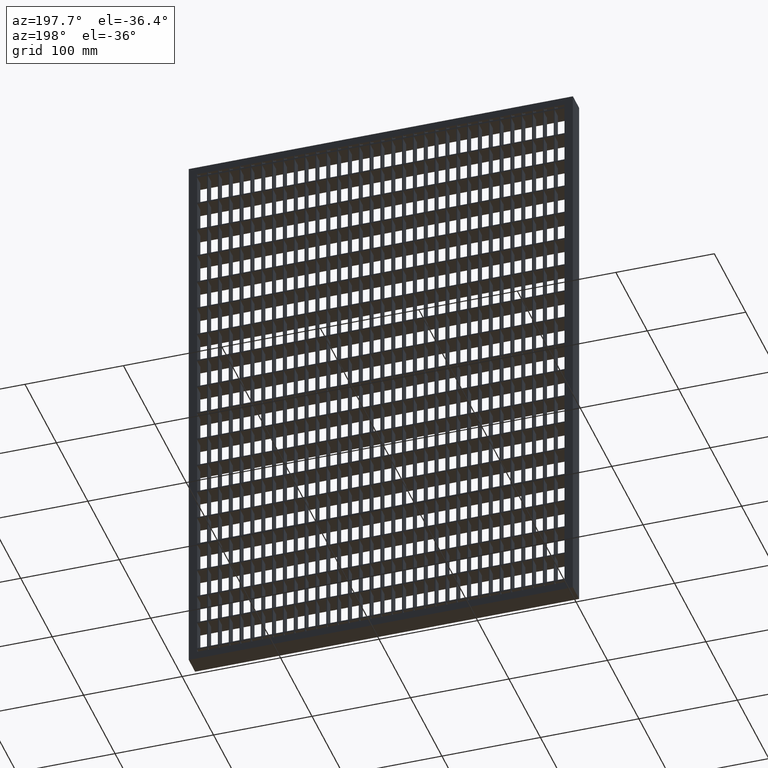
[diagram: clean part render]
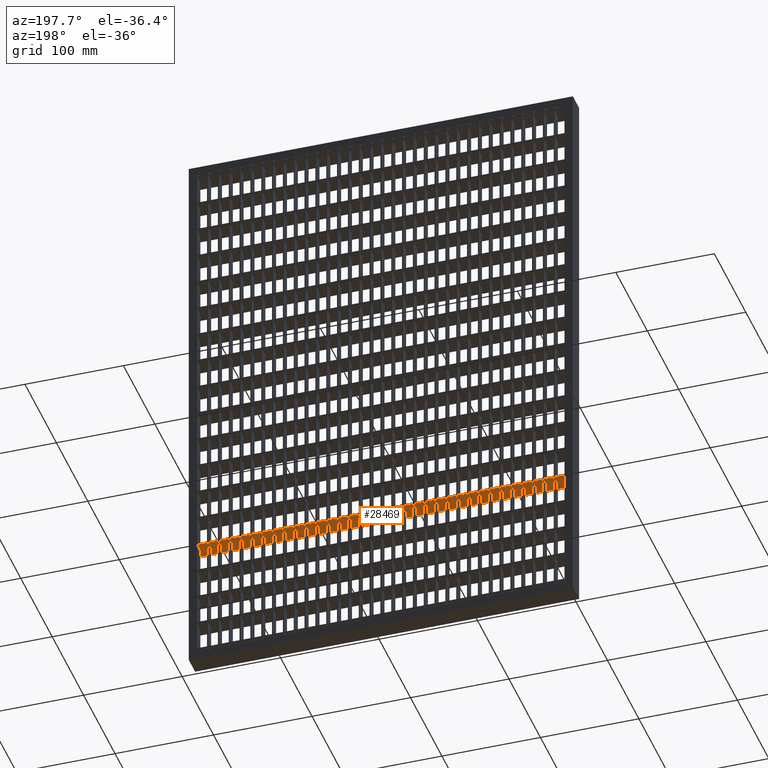
[diagram: same view with one face highlighted and labeled with its STEP entity id]
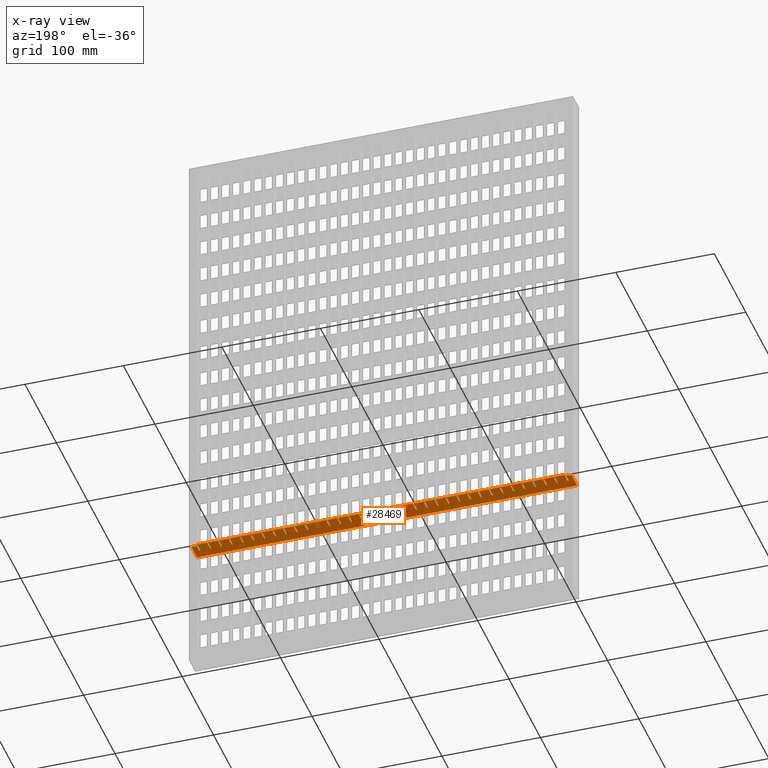
[diagram: x-ray of the same camera — body ghosted, the highlighted face saturated]
A machine part, auxiliary view. The second image highlights one B-rep face of the part: STEP entity #28469.
The next image is the same camera in x-ray: the body ghosted, the highlighted face saturated — about 0% of this face is hidden behind the body in this view.
In plain terms, the highlighted planar face has unit normal (0, 0, 1).
Its self-contained STEP definition (entity closure, byte-faithful):
#144 = EDGE_CURVE ( 'NONE', #3323, #60598, #19922, .T. ) ;
#207 = LINE ( 'NONE', #16979, #74221 ) ;
#248 = EDGE_CURVE ( 'NONE', #86354, #44160, #11823, .T. ) ;
#345 = ORIENTED_EDGE ( 'NONE', *, *, #84418, .T. ) ;
#395 = LINE ( 'NONE', #75064, #52413 ) ;
#396 = EDGE_CURVE ( 'NONE', #35924, #92250, #77726, .T. ) ;
#686 = VERTEX_POINT ( 'NONE', #36365 ) ;
#836 = ORIENTED_EDGE ( 'NONE', *, *, #70876, .T. ) ;
#864 = ORIENTED_EDGE ( 'NONE', *, *, #39873, .F. ) ;
#923 = LINE ( 'NONE', #89124, #77263 ) ;
#963 = CARTESIAN_POINT ( 'NONE',  ( 216.5000000000000600, 0.0000000000000000000, -453.2499999999996600 ) ) ;
#1115 = EDGE_CURVE ( 'NONE', #54842, #55804, #66169, .T. ) ;
#1119 = EDGE_CURVE ( 'NONE', #60914, #33950, #63845, .T. ) ;
#1159 = DIRECTION ( 'NONE',  ( -1.000000000000000000, -3.061616997868383100E-016, 0.0000000000000000000 ) ) ;
#1240 = EDGE_CURVE ( 'NONE', #20592, #46611, #27900, .T. ) ;
#1309 = ORIENTED_EDGE ( 'NONE', *, *, #11625, .F. ) ;
#1355 = DIRECTION ( 'NONE',  ( -1.000000000000000000, -3.061616997868383100E-016, 0.0000000000000000000 ) ) ;
#1396 = VERTEX_POINT ( 'NONE', #91280 ) ;
#1465 = ORIENTED_EDGE ( 'NONE', *, *, #7588, .F. ) ;
#1547 = LINE ( 'NONE', #40472, #66314 ) ;
#1558 = DIRECTION ( 'NONE',  ( 1.000000000000000000, 3.061616997868381200E-016, -0.0000000000000000000 ) ) ;
#1706 = ORIENTED_EDGE ( 'NONE', *, *, #77143, .T. ) ;
#1789 = LINE ( 'NONE', #53485, #66573 ) ;
#1822 = VECTOR ( 'NONE', #1159, 1000.000000000000000 ) ;
#1858 = VERTEX_POINT ( 'NONE', #28765 ) ;
#1903 = VECTOR ( 'NONE', #46127, 1000.000000000000000 ) ;
#1933 = LINE ( 'NONE', #64150, #15841 ) ;
#1991 = VECTOR ( 'NONE', #79908, 1000.000000000000000 ) ;
#2090 = LINE ( 'NONE', #62102, #21752 ) ;
#2132 = LINE ( 'NONE', #66692, #17141 ) ;
#2231 = DIRECTION ( 'NONE',  ( -0.0000000000000000000, 1.000000000000000000, 0.0000000000000000000 ) ) ;
#2252 = CARTESIAN_POINT ( 'NONE',  ( 408.0561711201315200, 10.00000000000012100, -453.2499999999996600 ) ) ;
#2326 = CARTESIAN_POINT ( 'NONE',  ( 8.500000000000007100, 0.0000000000000000000, -453.2499999999996600 ) ) ;
#2367 = EDGE_CURVE ( 'NONE', #29081, #67061, #70399, .T. ) ;
#2434 = CARTESIAN_POINT ( 'NONE',  ( 327.5000000000000000, 2.111809090760399300E-015, -453.2499999999996600 ) ) ;
#2467 = CARTESIAN_POINT ( 'NONE',  ( 272.5000000000000600, 10.00000000000008000, -453.2499999999996600 ) ) ;
#2624 = EDGE_CURVE ( 'NONE', #32377, #70332, #91221, .T. ) ;
#2689 = CARTESIAN_POINT ( 'NONE',  ( 184.5000000000000000, 10.00000000000000200, -453.2499999999996600 ) ) ;
#2697 = ORIENTED_EDGE ( 'NONE', *, *, #95166, .F. ) ;
#2743 = VERTEX_POINT ( 'NONE', #4106 ) ;
#2877 = LINE ( 'NONE', #95650, #91989 ) ;
#2918 = CARTESIAN_POINT ( 'NONE',  ( 19.50000000000001800, -9.999999999999879200, -453.2499999999996600 ) ) ;
#3078 = LINE ( 'NONE', #71842, #93368 ) ;
#3252 = LINE ( 'NONE', #52278, #47192 ) ;
#3323 = VERTEX_POINT ( 'NONE', #2434 ) ;
#3387 = ORIENTED_EDGE ( 'NONE', *, *, #88309, .F. ) ;
#3470 = EDGE_CURVE ( 'NONE', #75113, #46178, #78273, .T. ) ;
#3521 = CARTESIAN_POINT ( 'NONE',  ( 304.5000000000000000, 10.00000000000000200, -453.2499999999996600 ) ) ;
#3543 = PLANE ( 'NONE',  #50430 ) ;
#3550 = CARTESIAN_POINT ( 'NONE',  ( 227.5000000000000000, 0.0000000000000000000, -453.2499999999996600 ) ) ;
#3581 = CARTESIAN_POINT ( 'NONE',  ( 408.0561711201315800, 9.020562075079396900E-014, -453.2499999999996600 ) ) ;
#3617 = LINE ( 'NONE', #32721, #69582 ) ;
#3658 = CARTESIAN_POINT ( 'NONE',  ( 250.5000000000000600, 1.400131310671621700E-015, -453.2499999999996600 ) ) ;
#3725 = DIRECTION ( 'NONE',  ( -1.000000000000000000, 3.061616997868381200E-016, 0.0000000000000000000 ) ) ;
#3754 = CARTESIAN_POINT ( 'NONE',  ( 74.50000000000001400, 10.00000000000000200, -453.2499999999996600 ) ) ;
#3899 = DIRECTION ( 'NONE',  ( -1.000000000000000000, 3.061616997868381200E-016, 0.0000000000000000000 ) ) ;
#4025 = VERTEX_POINT ( 'NONE', #51279 ) ;
#4105 = DIRECTION ( 'NONE',  ( 0.0000000000000000000, -1.000000000000000000, 0.0000000000000000000 ) ) ;
#4106 = CARTESIAN_POINT ( 'NONE',  ( 2.000000000000003600, 8.000000000000001800, -453.2499999999996600 ) ) ;
#4117 = LINE ( 'NONE', #58048, #30735 ) ;
#4127 = ORIENTED_EDGE ( 'NONE', *, *, #13095, .T. ) ;
#4132 = DIRECTION ( 'NONE',  ( -0.0000000000000000000, 1.000000000000000000, 0.0000000000000000000 ) ) ;
#4165 = EDGE_CURVE ( 'NONE', #36715, #54830, #36460, .T. ) ;
#4538 = ORIENTED_EDGE ( 'NONE', *, *, #53985, .F. ) ;
#4927 = DIRECTION ( 'NONE',  ( -1.000000000000000000, -3.061616997868383100E-016, 0.0000000000000000000 ) ) ;
#5036 = CARTESIAN_POINT ( 'NONE',  ( 227.5000000000000000, -9.999999999999879200, -453.2499999999996600 ) ) ;
#5044 = VERTEX_POINT ( 'NONE', #79582 ) ;
#5077 = VECTOR ( 'NONE', #62718, 1000.000000000000000 ) ;
#5219 = EDGE_CURVE ( 'NONE', #29179, #28233, #63622, .T. ) ;
#5225 = VERTEX_POINT ( 'NONE', #963 ) ;
#5351 = DIRECTION ( 'NONE',  ( -1.000000000000000000, -3.061616997868383100E-016, 0.0000000000000000000 ) ) ;
#5436 = DIRECTION ( 'NONE',  ( -0.0000000000000000000, 1.000000000000000000, 0.0000000000000000000 ) ) ;
#5469 = ORIENTED_EDGE ( 'NONE', *, *, #80290, .F. ) ;
#5567 = CARTESIAN_POINT ( 'NONE',  ( 40.49999999999997900, 10.00000000000000900, -453.2499999999996600 ) ) ;
#5585 = DIRECTION ( 'NONE',  ( -0.0000000000000000000, 1.000000000000000000, 0.0000000000000000000 ) ) ;
#5596 = VECTOR ( 'NONE', #86441, 1000.000000000000000 ) ;
#5656 = CARTESIAN_POINT ( 'NONE',  ( 73.50000000000001400, -9.999999999999879200, -453.2499999999996600 ) ) ;
#5823 = CARTESIAN_POINT ( 'NONE',  ( 283.5000000000001100, 10.00000000000008300, -453.2499999999996600 ) ) ;
#5884 = DIRECTION ( 'NONE',  ( 0.0000000000000000000, -1.000000000000000000, 0.0000000000000000000 ) ) ;
#5947 = CARTESIAN_POINT ( 'NONE',  ( 95.49999999999997200, 10.00000000000002700, -453.2499999999996600 ) ) ;
#6090 = LINE ( 'NONE', #55140, #20020 ) ;
#6141 = VECTOR ( 'NONE', #33005, 1000.000000000000000 ) ;
#6163 = ORIENTED_EDGE ( 'NONE', *, *, #35197, .F. ) ;
#6188 = CARTESIAN_POINT ( 'NONE',  ( 408.0561711201315800, -4.683753385137379200E-014, -453.2499999999996600 ) ) ;
#6396 = DIRECTION ( 'NONE',  ( -1.000000000000000000, -3.061616997868383100E-016, 0.0000000000000000000 ) ) ;
#6442 = EDGE_CURVE ( 'NONE', #13172, #51925, #40094, .T. ) ;
#6783 = CARTESIAN_POINT ( 'NONE',  ( 95.50000000000002800, -9.999999999999879200, -453.2499999999996600 ) ) ;
#7127 = VERTEX_POINT ( 'NONE', #34643 ) ;
#7205 = VERTEX_POINT ( 'NONE', #79963 ) ;
#7260 = DIRECTION ( 'NONE',  ( -1.000000000000000000, -3.061616997868383100E-016, 0.0000000000000000000 ) ) ;
#7417 = VECTOR ( 'NONE', #73694, 1000.000000000000000 ) ;
#7448 = DIRECTION ( 'NONE',  ( -1.000000000000000000, -3.061616997868383100E-016, 0.0000000000000000000 ) ) ;
#7588 = EDGE_CURVE ( 'NONE', #4025, #16350, #30707, .T. ) ;
#7654 = ORIENTED_EDGE ( 'NONE', *, *, #40890, .T. ) ;
#7666 = DIRECTION ( 'NONE',  ( -0.0000000000000000000, 1.000000000000000000, 0.0000000000000000000 ) ) ;
#8175 = ORIENTED_EDGE ( 'NONE', *, *, #3470, .F. ) ;
#8466 = DIRECTION ( 'NONE',  ( -0.0000000000000000000, 1.000000000000000000, 0.0000000000000000000 ) ) ;
#8508 = CARTESIAN_POINT ( 'NONE',  ( 408.0561711201315200, 10.00000000000012100, -453.2499999999996600 ) ) ;
#8574 = ORIENTED_EDGE ( 'NONE', *, *, #68612, .T. ) ;
#8682 = LINE ( 'NONE', #87436, #30676 ) ;
#8764 = DIRECTION ( 'NONE',  ( 0.0000000000000000000, -1.000000000000000000, 0.0000000000000000000 ) ) ;
#8803 = ORIENTED_EDGE ( 'NONE', *, *, #42038, .F. ) ;
#8847 = CARTESIAN_POINT ( 'NONE',  ( 293.5000000000000600, 0.0000000000000000000, -453.2499999999996600 ) ) ;
#8850 = ORIENTED_EDGE ( 'NONE', *, *, #42411, .T. ) ;
#8951 = ORIENTED_EDGE ( 'NONE', *, *, #6442, .F. ) ;
#8992 = EDGE_CURVE ( 'NONE', #69404, #76708, #74364, .T. ) ;
#9013 = VECTOR ( 'NONE', #72881, 1000.000000000000000 ) ;
#9055 = CARTESIAN_POINT ( 'NONE',  ( 41.50000000000000700, 1.006284330175756500E-015, -453.2499999999996600 ) ) ;
#9100 = VECTOR ( 'NONE', #15430, 1000.000000000000000 ) ;
#9165 = LINE ( 'NONE', #64018, #38100 ) ;
#9346 = DIRECTION ( 'NONE',  ( 0.0000000000000000000, -1.000000000000000000, 0.0000000000000000000 ) ) ;
#9560 = LINE ( 'NONE', #42594, #15337 ) ;
#9789 = CARTESIAN_POINT ( 'NONE',  ( 162.5000000000000000, 10.00000000000000200, -453.2499999999996600 ) ) ;
#9799 = ORIENTED_EDGE ( 'NONE', *, *, #63276, .F. ) ;
#9865 = CARTESIAN_POINT ( 'NONE',  ( 408.0561711201315800, -1.908195823574487800E-014, -453.2499999999996600 ) ) ;
#9932 = LINE ( 'NONE', #66587, #66688 ) ;
#9939 = ORIENTED_EDGE ( 'NONE', *, *, #13104, .F. ) ;
#10087 = DIRECTION ( 'NONE',  ( 0.0000000000000000000, -1.000000000000000000, 0.0000000000000000000 ) ) ;
#10166 = VECTOR ( 'NONE', #56675, 1000.000000000000000 ) ;
#10180 = VECTOR ( 'NONE', #79009, 1000.000000000000000 ) ;
#10186 = VERTEX_POINT ( 'NONE', #93151 ) ;
#10257 = VERTEX_POINT ( 'NONE', #50110 ) ;
#10264 = DIRECTION ( 'NONE',  ( -0.0000000000000000000, 1.000000000000000000, 0.0000000000000000000 ) ) ;
#10463 = ORIENTED_EDGE ( 'NONE', *, *, #80101, .T. ) ;
#10479 = CARTESIAN_POINT ( 'NONE',  ( 294.5000000000000000, 1.806804327865204400E-015, -453.2499999999996600 ) ) ;
#10480 = VERTEX_POINT ( 'NONE', #75586 ) ;
#10542 = DIRECTION ( 'NONE',  ( -1.000000000000000000, -3.061616997868383100E-016, 0.0000000000000000000 ) ) ;
#10711 = CARTESIAN_POINT ( 'NONE',  ( 73.50000000000001400, 7.001226303889181300E-016, -453.2499999999996600 ) ) ;
#10903 = CARTESIAN_POINT ( 'NONE',  ( 183.5000000000000000, 7.001226303889181300E-016, -453.2499999999996600 ) ) ;
#11127 = VERTEX_POINT ( 'NONE', #36340 ) ;
#11247 = LINE ( 'NONE', #6783, #1991 ) ;
#11263 = CARTESIAN_POINT ( 'NONE',  ( 408.0561711201315800, 1.144917494144692700E-013, -453.2499999999996600 ) ) ;
#11403 = EDGE_CURVE ( 'NONE', #60914, #10257, #3617, .T. ) ;
#11518 = CARTESIAN_POINT ( 'NONE',  ( 408.0561711201315200, 10.00000000000012100, -453.2499999999996600 ) ) ;
#11625 = EDGE_CURVE ( 'NONE', #34075, #3323, #44066, .T. ) ;
#11729 = CARTESIAN_POINT ( 'NONE',  ( 293.5000000000000600, 10.00000000000000200, -453.2499999999996600 ) ) ;
#11762 = VECTOR ( 'NONE', #49851, 1000.000000000000000 ) ;
#11811 = ORIENTED_EDGE ( 'NONE', *, *, #87269, .T. ) ;
#11823 = LINE ( 'NONE', #89869, #60458 ) ;
#11877 = ORIENTED_EDGE ( 'NONE', *, *, #69801, .F. ) ;
#12046 = DIRECTION ( 'NONE',  ( 0.0000000000000000000, -1.000000000000000000, 0.0000000000000000000 ) ) ;
#12156 = VECTOR ( 'NONE', #29149, 1000.000000000000000 ) ;
#12271 = EDGE_CURVE ( 'NONE', #64989, #84434, #9165, .T. ) ;
#12299 = EDGE_CURVE ( 'NONE', #62370, #59555, #28815, .T. ) ;
#12391 = CARTESIAN_POINT ( 'NONE',  ( 388.0000000000000000, -9.999999999999879200, -453.2499999999996600 ) ) ;
#12695 = ORIENTED_EDGE ( 'NONE', *, *, #42149, .F. ) ;
#12784 = CARTESIAN_POINT ( 'NONE',  ( 52.50000000000002100, 1.006284330175756500E-015, -453.2499999999996600 ) ) ;
#12830 = DIRECTION ( 'NONE',  ( -0.0000000000000000000, 1.000000000000000000, 0.0000000000000000000 ) ) ;
#12859 = CARTESIAN_POINT ( 'NONE',  ( 107.5000000000000400, -9.999999999999879200, -453.2499999999996600 ) ) ;
#13005 = CARTESIAN_POINT ( 'NONE',  ( 129.5000000000000000, 1.006284330175756500E-015, -453.2499999999996600 ) ) ;
#13020 = DIRECTION ( 'NONE',  ( 0.0000000000000000000, -1.000000000000000000, 0.0000000000000000000 ) ) ;
#13095 = EDGE_CURVE ( 'NONE', #48655, #25972, #74945, .T. ) ;
#13104 = EDGE_CURVE ( 'NONE', #67061, #88639, #21791, .T. ) ;
#13116 = LINE ( 'NONE', #49816, #71023 ) ;
#13124 = EDGE_CURVE ( 'NONE', #39058, #51925, #923, .T. ) ;
#13172 = VERTEX_POINT ( 'NONE', #17267 ) ;
#13410 = DIRECTION ( 'NONE',  ( -0.0000000000000000000, 1.000000000000000000, 0.0000000000000000000 ) ) ;
#13546 = EDGE_CURVE ( 'NONE', #46178, #20592, #1933, .T. ) ;
#13762 = LINE ( 'NONE', #52570, #54201 ) ;
#13913 = VERTEX_POINT ( 'NONE', #45900 ) ;
#13938 = CARTESIAN_POINT ( 'NONE',  ( 194.9999999999999700, 8.000000000000001800, -453.2499999999996600 ) ) ;
#13955 = CARTESIAN_POINT ( 'NONE',  ( 128.5000000000000000, 10.00000000000003700, -453.2499999999996600 ) ) ;
#14106 = EDGE_CURVE ( 'NONE', #56371, #86022, #59643, .T. ) ;
#14290 = CARTESIAN_POINT ( 'NONE',  ( 315.5000000000001100, 0.0000000000000000000, -453.2499999999996600 ) ) ;
#14300 = LINE ( 'NONE', #22314, #17744 ) ;
#14431 = CARTESIAN_POINT ( 'NONE',  ( 337.5000000000000000, -9.999999999999879200, -453.2499999999996600 ) ) ;
#14681 = LINE ( 'NONE', #20130, #91088 ) ;
#14686 = CARTESIAN_POINT ( 'NONE',  ( 206.5000000000000600, 10.00000000000005900, -453.2499999999996600 ) ) ;
#14887 = VECTOR ( 'NONE', #31025, 1000.000000000000000 ) ;
#14918 = CARTESIAN_POINT ( 'NONE',  ( 349.5000000000000600, 5.804221233803774300E-016, -453.2499999999996600 ) ) ;
#14968 = VECTOR ( 'NONE', #81479, 1000.000000000000000 ) ;
#15066 = LINE ( 'NONE', #24230, #28882 ) ;
#15171 = LINE ( 'NONE', #66135, #71890 ) ;
#15271 = LINE ( 'NONE', #51887, #26766 ) ;
#15337 = VECTOR ( 'NONE', #72031, 1000.000000000000000 ) ;
#15430 = DIRECTION ( 'NONE',  ( -1.000000000000000000, 3.061616997868381200E-016, 0.0000000000000000000 ) ) ;
#15549 = ORIENTED_EDGE ( 'NONE', *, *, #89987, .F. ) ;
#15816 = LINE ( 'NONE', #64687, #80606 ) ;
#15841 = VECTOR ( 'NONE', #13020, 1000.000000000000000 ) ;
#15975 = VECTOR ( 'NONE', #40163, 1000.000000000000000 ) ;
#16079 = EDGE_CURVE ( 'NONE', #30538, #7205, #18846, .T. ) ;
#16123 = CARTESIAN_POINT ( 'NONE',  ( 261.5000000000000600, 10.00000000000007600, -453.2499999999996600 ) ) ;
#16143 = EDGE_CURVE ( 'NONE', #28233, #16584, #77859, .T. ) ;
#16350 = VERTEX_POINT ( 'NONE', #72429 ) ;
#16371 = CARTESIAN_POINT ( 'NONE',  ( 41.50000000000000700, 10.00000000000000200, -453.2499999999996600 ) ) ;
#16428 = DIRECTION ( 'NONE',  ( -1.000000000000000000, 3.061616997868381200E-016, 0.0000000000000000000 ) ) ;
#16457 = ORIENTED_EDGE ( 'NONE', *, *, #81700, .F. ) ;
#16500 = CARTESIAN_POINT ( 'NONE',  ( 150.5000000000000300, 10.00000000000004400, -453.2499999999996600 ) ) ;
#16584 = VERTEX_POINT ( 'NONE', #81473 ) ;
#16655 = EDGE_CURVE ( 'NONE', #95511, #1858, #19867, .T. ) ;
#16723 = VECTOR ( 'NONE', #18718, 1000.000000000000000 ) ;
#16771 = ORIENTED_EDGE ( 'NONE', *, *, #74896, .F. ) ;
#16869 = LINE ( 'NONE', #89529, #90957 ) ;
#16908 = ORIENTED_EDGE ( 'NONE', *, *, #2367, .F. ) ;
#16974 = ORIENTED_EDGE ( 'NONE', *, *, #16079, .T. ) ;
#16979 = CARTESIAN_POINT ( 'NONE',  ( 29.50000000000002500, -9.999999999999879200, -453.2499999999996600 ) ) ;
#17141 = VECTOR ( 'NONE', #1355, 1000.000000000000000 ) ;
#17249 = EDGE_CURVE ( 'NONE', #88537, #57633, #19735, .T. ) ;
#17267 = CARTESIAN_POINT ( 'NONE',  ( 183.5000000000000000, 10.00000000000005200, -453.2499999999996600 ) ) ;
#17408 = ORIENTED_EDGE ( 'NONE', *, *, #16143, .F. ) ;
#17433 = CARTESIAN_POINT ( 'NONE',  ( 228.5000000000000300, 1.196794802074833300E-015, -453.2499999999996600 ) ) ;
#17494 = CARTESIAN_POINT ( 'NONE',  ( 305.5000000000000000, -9.999999999999879200, -453.2499999999996600 ) ) ;
#17537 = DIRECTION ( 'NONE',  ( -1.000000000000000000, -3.061616997868383100E-016, 0.0000000000000000000 ) ) ;
#17631 = VECTOR ( 'NONE', #3899, 1000.000000000000000 ) ;
#17648 = EDGE_CURVE ( 'NONE', #23531, #18692, #54322, .T. ) ;
#17685 = VECTOR ( 'NONE', #70610, 1000.000000000000000 ) ;
#17693 = LINE ( 'NONE', #46249, #57027 ) ;
#17744 = VECTOR ( 'NONE', #66317, 1000.000000000000000 ) ;
#17861 = VERTEX_POINT ( 'NONE', #63811 ) ;
#17866 = DIRECTION ( 'NONE',  ( 0.0000000000000000000, -1.000000000000000000, 0.0000000000000000000 ) ) ;
#17978 = VERTEX_POINT ( 'NONE', #5567 ) ;
#17984 = CARTESIAN_POINT ( 'NONE',  ( 381.5000000000000600, 1.006284330175756500E-015, -453.2499999999996600 ) ) ;
#18011 = LINE ( 'NONE', #20980, #92105 ) ;
#18262 = LINE ( 'NONE', #71561, #10166 ) ;
#18302 = CARTESIAN_POINT ( 'NONE',  ( 282.5000000000000600, -9.999999999999879200, -453.2499999999996600 ) ) ;
#18400 = DIRECTION ( 'NONE',  ( 0.0000000000000000000, -1.000000000000000000, 0.0000000000000000000 ) ) ;
#18494 = LINE ( 'NONE', #27648, #35806 ) ;
#18594 = ORIENTED_EDGE ( 'NONE', *, *, #39880, .F. ) ;
#18610 = DIRECTION ( 'NONE',  ( -1.000000000000000000, 3.061616997868381200E-016, 0.0000000000000000000 ) ) ;
#18692 = VERTEX_POINT ( 'NONE', #73864 ) ;
#18718 = DIRECTION ( 'NONE',  ( -0.0000000000000000000, 1.000000000000000000, 0.0000000000000000000 ) ) ;
#18796 = CARTESIAN_POINT ( 'NONE',  ( 408.0561711201315800, -2.949029909160572100E-014, -453.2499999999996600 ) ) ;
#18846 = LINE ( 'NONE', #3581, #85975 ) ;
#18880 = LINE ( 'NONE', #41955, #69797 ) ;
#18921 = VECTOR ( 'NONE', #50731, 1000.000000000000000 ) ;
#19105 = DIRECTION ( 'NONE',  ( -0.0000000000000000000, 1.000000000000000000, 0.0000000000000000000 ) ) ;
#19358 = VECTOR ( 'NONE', #38067, 1000.000000000000000 ) ;
#19501 = LINE ( 'NONE', #71531, #10180 ) ;
#19519 = CARTESIAN_POINT ( 'NONE',  ( 84.50000000000001400, 7.001226303889181300E-016, -453.2499999999996600 ) ) ;
#19537 = CARTESIAN_POINT ( 'NONE',  ( 408.0561711201315200, 10.00000000000012100, -453.2499999999996600 ) ) ;
#19605 = LINE ( 'NONE', #27863, #21923 ) ;
#19645 = VECTOR ( 'NONE', #88692, 1000.000000000000000 ) ;
#19735 = LINE ( 'NONE', #17494, #84526 ) ;
#19781 = ORIENTED_EDGE ( 'NONE', *, *, #32764, .F. ) ;
#19782 = EDGE_CURVE ( 'NONE', #7205, #42578, #56106, .T. ) ;
#19867 = LINE ( 'NONE', #53288, #57976 ) ;
#19871 = LINE ( 'NONE', #2252, #61519 ) ;
#19901 = CARTESIAN_POINT ( 'NONE',  ( 96.50000000000002800, -9.999999999999879200, -453.2499999999996600 ) ) ;
#19922 = LINE ( 'NONE', #75926, #48841 ) ;
#20020 = VECTOR ( 'NONE', #3725, 1000.000000000000000 ) ;
#20080 = DIRECTION ( 'NONE',  ( 1.000000000000000000, 3.061616997868381200E-016, -0.0000000000000000000 ) ) ;
#20130 = CARTESIAN_POINT ( 'NONE',  ( 161.5000000000000000, -9.999999999999879200, -453.2499999999996600 ) ) ;
#20528 = EDGE_CURVE ( 'NONE', #5044, #37291, #38536, .T. ) ;
#20592 = VERTEX_POINT ( 'NONE', #72114 ) ;
#20619 = VERTEX_POINT ( 'NONE', #42982 ) ;
#20628 = CARTESIAN_POINT ( 'NONE',  ( 19.50000000000001800, 1.006284330175756500E-015, -453.2499999999996600 ) ) ;
#20734 = CARTESIAN_POINT ( 'NONE',  ( 382.5000000000000600, 7.001226303889181300E-016, -453.2499999999996600 ) ) ;
#20737 = LINE ( 'NONE', #92147, #82068 ) ;
#20766 = CARTESIAN_POINT ( 'NONE',  ( 408.0561711201315800, -1.040834085586084300E-014, -453.2499999999996600 ) ) ;
#20802 = VECTOR ( 'NONE', #32957, 1000.000000000000000 ) ;
#20873 = ORIENTED_EDGE ( 'NONE', *, *, #74193, .F. ) ;
#20980 = CARTESIAN_POINT ( 'NONE',  ( 408.0561711201315200, 10.00000000000012100, -453.2499999999996600 ) ) ;
#21083 = EDGE_CURVE ( 'NONE', #1858, #54811, #58259, .T. ) ;
#21212 = DIRECTION ( 'NONE',  ( -0.0000000000000000000, 1.000000000000000000, 0.0000000000000000000 ) ) ;
#21222 = LINE ( 'NONE', #46953, #86014 ) ;
#21358 = CARTESIAN_POINT ( 'NONE',  ( 106.5000000000000100, 7.001226303889181300E-016, -453.2499999999996600 ) ) ;
#21424 = CARTESIAN_POINT ( 'NONE',  ( 2.000000000000003600, -10.00000000000000000, -453.2499999999996600 ) ) ;
#21752 = VECTOR ( 'NONE', #33570, 1000.000000000000000 ) ;
#21791 = LINE ( 'NONE', #67110, #49527 ) ;
#21812 = CARTESIAN_POINT ( 'NONE',  ( 172.5000000000000300, 10.00000000000004800, -453.2499999999996600 ) ) ;
#21923 = VECTOR ( 'NONE', #4927, 1000.000000000000000 ) ;
#22151 = LINE ( 'NONE', #41183, #32490 ) ;
#22185 = VERTEX_POINT ( 'NONE', #78849 ) ;
#22314 = CARTESIAN_POINT ( 'NONE',  ( 217.5000000000000600, -9.999999999999879200, -453.2499999999996600 ) ) ;
#22330 = ORIENTED_EDGE ( 'NONE', *, *, #54750, .T. ) ;
#22452 = LINE ( 'NONE', #79362, #59461 ) ;
#22478 = DIRECTION ( 'NONE',  ( -1.000000000000000000, 3.061616997868381200E-016, 0.0000000000000000000 ) ) ;
#22549 = VECTOR ( 'NONE', #7666, 1000.000000000000000 ) ;
#22573 = LINE ( 'NONE', #46606, #39893 ) ;
#22742 = DIRECTION ( 'NONE',  ( -1.000000000000000000, 3.061616997868381200E-016, 0.0000000000000000000 ) ) ;
#22949 = VERTEX_POINT ( 'NONE', #58302 ) ;
#22981 = ORIENTED_EDGE ( 'NONE', *, *, #78600, .F. ) ;
#23045 = EDGE_CURVE ( 'NONE', #43742, #40910, #75894, .T. ) ;
#23063 = DIRECTION ( 'NONE',  ( 1.000000000000000000, 3.061616997868381200E-016, -0.0000000000000000000 ) ) ;
#23171 = DIRECTION ( 'NONE',  ( -0.0000000000000000000, 1.000000000000000000, 0.0000000000000000000 ) ) ;
#23498 = CARTESIAN_POINT ( 'NONE',  ( 408.0561711201315800, -3.989863994746656300E-014, -453.2499999999996600 ) ) ;
#23531 = VERTEX_POINT ( 'NONE', #84420 ) ;
#23691 = ORIENTED_EDGE ( 'NONE', *, *, #14106, .F. ) ;
#23855 = EDGE_CURVE ( 'NONE', #54811, #29179, #18011, .T. ) ;
#23929 = DIRECTION ( 'NONE',  ( 1.000000000000000000, 3.061616997868381200E-016, -0.0000000000000000000 ) ) ;
#23953 = DIRECTION ( 'NONE',  ( -1.000000000000000000, -3.061616997868383100E-016, 0.0000000000000000000 ) ) ;
#24057 = VECTOR ( 'NONE', #55793, 1000.000000000000000 ) ;
#24064 = DIRECTION ( 'NONE',  ( -1.000000000000000000, -3.061616997868383100E-016, 0.0000000000000000000 ) ) ;
#24113 = VERTEX_POINT ( 'NONE', #16371 ) ;
#24123 = CARTESIAN_POINT ( 'NONE',  ( 408.0561711201315800, 6.765421556309547700E-014, -453.2499999999996600 ) ) ;
#24138 = ORIENTED_EDGE ( 'NONE', *, *, #31767, .T. ) ;
#24209 = CARTESIAN_POINT ( 'NONE',  ( 51.49999999999999300, 10.00000000000001200, -453.2499999999996600 ) ) ;
#24210 = LINE ( 'NONE', #20766, #76186 ) ;
#24230 = CARTESIAN_POINT ( 'NONE',  ( 40.49999999999997900, -9.999999999999879200, -453.2499999999996600 ) ) ;
#24731 = LINE ( 'NONE', #11263, #5077 ) ;
#24843 = EDGE_CURVE ( 'NONE', #70807, #57696, #58197, .T. ) ;
#24884 = DIRECTION ( 'NONE',  ( -0.0000000000000000000, 1.000000000000000000, 0.0000000000000000000 ) ) ;
#25062 = VERTEX_POINT ( 'NONE', #64423 ) ;
#25307 = CARTESIAN_POINT ( 'NONE',  ( 283.5000000000001100, 1.705136073566798000E-015, -453.2499999999996600 ) ) ;
#25558 = CARTESIAN_POINT ( 'NONE',  ( 408.0561711201315800, 1.110223024625156500E-013, -453.2499999999996600 ) ) ;
#25654 = CARTESIAN_POINT ( 'NONE',  ( 408.0561711201315800, 1.040834085586084300E-013, -453.2499999999996600 ) ) ;
#25709 = VERTEX_POINT ( 'NONE', #73835 ) ;
#25952 = CARTESIAN_POINT ( 'NONE',  ( 315.5000000000001100, 10.00000000000000200, -453.2499999999996600 ) ) ;
#25972 = VERTEX_POINT ( 'NONE', #83195 ) ;
#26097 = ORIENTED_EDGE ( 'NONE', *, *, #8992, .T. ) ;
#26313 = ORIENTED_EDGE ( 'NONE', *, *, #94749, .F. ) ;
#26475 = LINE ( 'NONE', #33720, #84421 ) ;
#26530 = DIRECTION ( 'NONE',  ( 1.000000000000000000, 3.061616997868381200E-016, -0.0000000000000000000 ) ) ;
#26560 = LINE ( 'NONE', #59166, #72847 ) ;
#26573 = CARTESIAN_POINT ( 'NONE',  ( 206.5000000000000900, 9.934582934780326000E-016, -453.2499999999996600 ) ) ;
#26685 = EDGE_CURVE ( 'NONE', #59555, #58074, #38085, .T. ) ;
#26766 = VECTOR ( 'NONE', #45393, 1000.000000000000000 ) ;
#26818 = VERTEX_POINT ( 'NONE', #35517 ) ;
#26981 = VERTEX_POINT ( 'NONE', #53585 ) ;
#27244 = DIRECTION ( 'NONE',  ( 0.0000000000000000000, -1.000000000000000000, 0.0000000000000000000 ) ) ;
#27288 = ORIENTED_EDGE ( 'NONE', *, *, #17648, .F. ) ;
#27475 = VERTEX_POINT ( 'NONE', #59019 ) ;
#27494 = CARTESIAN_POINT ( 'NONE',  ( 128.5000000000000000, 7.001226303889181300E-016, -453.2499999999996600 ) ) ;
#27537 = VECTOR ( 'NONE', #65103, 1000.000000000000000 ) ;
#27587 = VERTEX_POINT ( 'NONE', #67115 ) ;
#27648 = CARTESIAN_POINT ( 'NONE',  ( 18.50000000000001800, -9.999999999999879200, -453.2499999999996600 ) ) ;
#27724 = CARTESIAN_POINT ( 'NONE',  ( 316.5000000000001100, 10.00000000000009400, -453.2499999999996600 ) ) ;
#27726 = EDGE_CURVE ( 'NONE', #53276, #64507, #1789, .T. ) ;
#27863 = CARTESIAN_POINT ( 'NONE',  ( 408.0561711201315200, 10.00000000000012100, -453.2499999999996600 ) ) ;
#27900 = LINE ( 'NONE', #74488, #41821 ) ;
#27950 = CARTESIAN_POINT ( 'NONE',  ( 96.50000000000001400, 1.006284330175756500E-015, -453.2499999999996600 ) ) ;
#28016 = ORIENTED_EDGE ( 'NONE', *, *, #56324, .T. ) ;
#28091 = CARTESIAN_POINT ( 'NONE',  ( 2.000000000000003600, 8.000000000000001800, -453.2499999999996600 ) ) ;
#28153 = VECTOR ( 'NONE', #19105, 1000.000000000000000 ) ;
#28233 = VERTEX_POINT ( 'NONE', #14918 ) ;
#28293 = EDGE_CURVE ( 'NONE', #93630, #49967, #39780, .T. ) ;
#28389 = CARTESIAN_POINT ( 'NONE',  ( 382.5000000000000600, -9.999999999999879200, -453.2499999999996600 ) ) ;
#28407 = LINE ( 'NONE', #76818, #44550 ) ;
#28469 = ADVANCED_FACE ( 'NONE', ( #71008 ), #3543, .F. ) ;
#28490 = DIRECTION ( 'NONE',  ( -1.000000000000000000, 3.061616997868381200E-016, 0.0000000000000000000 ) ) ;
#28604 = VECTOR ( 'NONE', #93677, 1000.000000000000000 ) ;
#28651 = ORIENTED_EDGE ( 'NONE', *, *, #34348, .T. ) ;
#28765 = CARTESIAN_POINT ( 'NONE',  ( 359.5000000000000600, 0.0000000000000000000, -453.2499999999996600 ) ) ;
#28767 = LINE ( 'NONE', #51916, #78456 ) ;
#28775 = ORIENTED_EDGE ( 'NONE', *, *, #76129, .T. ) ;
#28798 = CARTESIAN_POINT ( 'NONE',  ( 161.5000000000000000, 7.001226303889181300E-016, -453.2499999999996600 ) ) ;
#28815 = LINE ( 'NONE', #85373, #53136 ) ;
#28882 = VECTOR ( 'NONE', #9346, 1000.000000000000000 ) ;
#28987 = EDGE_LOOP ( 'NONE', ( #68307, #91130, #1706, #54388, #69373, #864, #87169, #26097, #69212, #61724, #28016, #54419, #71270, #70796, #7654, #41063, #28775, #46698, #46694, #85787, #836, #16771, #46397, #44873, #69257, #69042, #53219, #53353, #89827, #42006, #74635, #59999, #69525, #69628, #47291, #10463, #78517, #61144, #81274, #65869, #8850, #3387, #36842, #58081, #8574, #94989, #50409, #16974, #82182, #39203, #48507, #33979, #95269, #57876, #64123, #29567, #22330, #65234, #94138, #67990, #78006, #45081, #24138, #345, #29289, #23691, #28651, #58508, #54228, #8951, #74889, #64575, #68234, #62060, #4127, #11811, #88264, #84733, #26313, #76205, #53391, #15549, #18594, #6163, #66761, #85023, #85926, #9939, #16908, #56800, #64602, #47097, #1465, #80189, #71238, #16457, #57167, #27288, #51726, #55846, #61471, #8175, #37438, #8803, #44494, #20873, #33581, #33309, #73903, #4538, #2697, #12695, #60221, #36074, #95051, #45843, #35748, #66296, #88996, #93002, #84924, #72686, #22981, #82006, #1309, #90878, #85042, #72486, #5469, #50662, #45608, #17408, #56419, #41332, #83394, #82518, #84749, #48312, #82116, #11877, #9799, #87465, #19781, #41737 ) ) ;
#29042 = VERTEX_POINT ( 'NONE', #25952 ) ;
#29081 = VERTEX_POINT ( 'NONE', #40493 ) ;
#29110 = VECTOR ( 'NONE', #74694, 1000.000000000000000 ) ;
#29149 = DIRECTION ( 'NONE',  ( -1.000000000000000000, -3.061616997868383100E-016, 0.0000000000000000000 ) ) ;
#29179 = VERTEX_POINT ( 'NONE', #86778 ) ;
#29271 = CARTESIAN_POINT ( 'NONE',  ( 408.0561711201315800, -6.071532165918824800E-014, -453.2499999999996600 ) ) ;
#29289 = ORIENTED_EDGE ( 'NONE', *, *, #83840, .T. ) ;
#29379 = CARTESIAN_POINT ( 'NONE',  ( 2.000000000000001800, -10.00000000000000400, -453.2499999999996600 ) ) ;
#29400 = CARTESIAN_POINT ( 'NONE',  ( 84.49999999999995700, 10.00000000000002300, -453.2499999999996600 ) ) ;
#29567 = ORIENTED_EDGE ( 'NONE', *, *, #20528, .T. ) ;
#29677 = CARTESIAN_POINT ( 'NONE',  ( 173.5000000000000300, 1.006284330175756500E-015, -453.2499999999996600 ) ) ;
#29690 = CARTESIAN_POINT ( 'NONE',  ( 349.5000000000000600, -9.999999999999879200, -453.2499999999996600 ) ) ;
#29867 = DIRECTION ( 'NONE',  ( 0.0000000000000000000, -1.000000000000000000, 0.0000000000000000000 ) ) ;
#29896 = VECTOR ( 'NONE', #28490, 1000.000000000000000 ) ;
#29944 = VERTEX_POINT ( 'NONE', #94271 ) ;
#30243 = DIRECTION ( 'NONE',  ( -0.0000000000000000000, 1.000000000000000000, 0.0000000000000000000 ) ) ;
#30538 = VERTEX_POINT ( 'NONE', #62182 ) ;
#30652 = EDGE_CURVE ( 'NONE', #41215, #57696, #95911, .T. ) ;
#30660 = CARTESIAN_POINT ( 'NONE',  ( 30.50000000000002800, -9.999999999999879200, -453.2499999999996600 ) ) ;
#30676 = VECTOR ( 'NONE', #5585, 1000.000000000000000 ) ;
#30707 = LINE ( 'NONE', #62741, #56158 ) ;
#30735 = VECTOR ( 'NONE', #37929, 1000.000000000000000 ) ;
#30929 = CARTESIAN_POINT ( 'NONE',  ( 271.5000000000000600, 0.0000000000000000000, -453.2499999999996600 ) ) ;
#31025 = DIRECTION ( 'NONE',  ( -0.0000000000000000000, 1.000000000000000000, 0.0000000000000000000 ) ) ;
#31352 = DIRECTION ( 'NONE',  ( -0.0000000000000000000, 1.000000000000000000, 0.0000000000000000000 ) ) ;
#31767 = EDGE_CURVE ( 'NONE', #29944, #49042, #14681, .T. ) ;
#32130 = DIRECTION ( 'NONE',  ( -1.000000000000000000, -3.061616997868383100E-016, 0.0000000000000000000 ) ) ;
#32177 = CARTESIAN_POINT ( 'NONE',  ( 408.0561711201315200, 10.00000000000012100, -453.2499999999996600 ) ) ;
#32377 = VERTEX_POINT ( 'NONE', #52549 ) ;
#32421 = EDGE_CURVE ( 'NONE', #96002, #60193, #28767, .T. ) ;
#32490 = VECTOR ( 'NONE', #92947, 1000.000000000000000 ) ;
#32721 = CARTESIAN_POINT ( 'NONE',  ( 62.50000000000000000, -9.999999999999879200, -453.2499999999996600 ) ) ;
#32764 = EDGE_CURVE ( 'NONE', #93168, #96002, #26475, .T. ) ;
#32957 = DIRECTION ( 'NONE',  ( 1.000000000000000000, 3.061616997868381200E-016, -0.0000000000000000000 ) ) ;
#33005 = DIRECTION ( 'NONE',  ( -1.000000000000000000, -3.061616997868383100E-016, 0.0000000000000000000 ) ) ;
#33309 = ORIENTED_EDGE ( 'NONE', *, *, #92588, .F. ) ;
#33319 = CARTESIAN_POINT ( 'NONE',  ( 408.0561711201315200, 10.00000000000012100, -453.2499999999996600 ) ) ;
#33379 = DIRECTION ( 'NONE',  ( -0.0000000000000000000, 1.000000000000000000, 0.0000000000000000000 ) ) ;
#33398 = VECTOR ( 'NONE', #52593, 1000.000000000000000 ) ;
#33426 = CARTESIAN_POINT ( 'NONE',  ( 408.0561711201315800, 6.938893903907228400E-014, -453.2499999999996600 ) ) ;
#33452 = CARTESIAN_POINT ( 'NONE',  ( 162.5000000000000000, 1.006284330175756500E-015, -453.2499999999996600 ) ) ;
#33461 = EDGE_CURVE ( 'NONE', #71869, #26981, #11247, .T. ) ;
#33529 = DIRECTION ( 'NONE',  ( -1.000000000000000000, -3.061616997868383100E-016, 0.0000000000000000000 ) ) ;
#33537 = VECTOR ( 'NONE', #10542, 1000.000000000000000 ) ;
#33570 = DIRECTION ( 'NONE',  ( 0.0000000000000000000, -1.000000000000000000, 0.0000000000000000000 ) ) ;
#33581 = ORIENTED_EDGE ( 'NONE', *, *, #93164, .F. ) ;
#33707 = LINE ( 'NONE', #34008, #70766 ) ;
#33720 = CARTESIAN_POINT ( 'NONE',  ( 381.5000000000000600, -9.999999999999879200, -453.2499999999996600 ) ) ;
#33943 = VECTOR ( 'NONE', #79864, 1000.000000000000000 ) ;
#33950 = VERTEX_POINT ( 'NONE', #86937 ) ;
#33979 = ORIENTED_EDGE ( 'NONE', *, *, #48040, .T. ) ;
#34008 = CARTESIAN_POINT ( 'NONE',  ( 338.5000000000000000, -9.999999999999879200, -453.2499999999996600 ) ) ;
#34011 = VECTOR ( 'NONE', #80578, 1000.000000000000000 ) ;
#34075 = VERTEX_POINT ( 'NONE', #66203 ) ;
#34160 = DIRECTION ( 'NONE',  ( -0.0000000000000000000, 1.000000000000000000, 0.0000000000000000000 ) ) ;
#34199 = VECTOR ( 'NONE', #8764, 1000.000000000000000 ) ;
#34247 = DIRECTION ( 'NONE',  ( -1.000000000000000000, 3.061616997868381200E-016, 0.0000000000000000000 ) ) ;
#34331 = VECTOR ( 'NONE', #35088, 1000.000000000000000 ) ;
#34348 = EDGE_CURVE ( 'NONE', #56371, #26818, #68884, .T. ) ;
#34418 = DIRECTION ( 'NONE',  ( 0.0000000000000000000, -1.000000000000000000, 0.0000000000000000000 ) ) ;
#34643 = CARTESIAN_POINT ( 'NONE',  ( 19.50000000000001800, 10.00000000000000200, -453.2499999999996600 ) ) ;
#34750 = VERTEX_POINT ( 'NONE', #10903 ) ;
#34878 = CARTESIAN_POINT ( 'NONE',  ( 408.0561711201315800, 8.326672684688674100E-014, -453.2499999999996600 ) ) ;
#35018 = EDGE_CURVE ( 'NONE', #37249, #52339, #73381, .T. ) ;
#35088 = DIRECTION ( 'NONE',  ( -1.000000000000000000, -3.061616997868383100E-016, 0.0000000000000000000 ) ) ;
#35197 = EDGE_CURVE ( 'NONE', #22949, #5225, #43235, .T. ) ;
#35319 = LINE ( 'NONE', #88706, #12156 ) ;
#35410 = CARTESIAN_POINT ( 'NONE',  ( 63.50000000000000000, 10.00000000000000200, -453.2499999999996600 ) ) ;
#35517 = CARTESIAN_POINT ( 'NONE',  ( 172.5000000000000300, 7.001226303889181300E-016, -453.2499999999996600 ) ) ;
#35641 = LINE ( 'NONE', #19901, #24057 ) ;
#35748 = ORIENTED_EDGE ( 'NONE', *, *, #17249, .F. ) ;
#35778 = VERTEX_POINT ( 'NONE', #66049 ) ;
#35806 = VECTOR ( 'NONE', #80048, 1000.000000000000000 ) ;
#35924 = VERTEX_POINT ( 'NONE', #16500 ) ;
#36013 = CARTESIAN_POINT ( 'NONE',  ( 74.50000000000001400, -9.999999999999879200, -453.2499999999996600 ) ) ;
#36074 = ORIENTED_EDGE ( 'NONE', *, *, #52083, .F. ) ;
#36161 = EDGE_CURVE ( 'NONE', #57633, #32377, #85901, .T. ) ;
#36340 = CARTESIAN_POINT ( 'NONE',  ( 249.5000000000000300, 0.0000000000000000000, -453.2499999999996600 ) ) ;
#36365 = CARTESIAN_POINT ( 'NONE',  ( 249.5000000000000300, 10.00000000000000200, -453.2499999999996600 ) ) ;
#36399 = CARTESIAN_POINT ( 'NONE',  ( 205.5000000000000600, -9.999999999999879200, -453.2499999999996600 ) ) ;
#36460 = LINE ( 'NONE', #60631, #1822 ) ;
#36486 = VERTEX_POINT ( 'NONE', #45830 ) ;
#36715 = VERTEX_POINT ( 'NONE', #84359 ) ;
#36842 = ORIENTED_EDGE ( 'NONE', *, *, #66404, .T. ) ;
#36853 = LINE ( 'NONE', #83130, #14887 ) ;
#36977 = VERTEX_POINT ( 'NONE', #80720 ) ;
#37052 = DIRECTION ( 'NONE',  ( 1.000000000000000000, 3.061616997868381200E-016, -0.0000000000000000000 ) ) ;
#37249 = VERTEX_POINT ( 'NONE', #83911 ) ;
#37291 = VERTEX_POINT ( 'NONE', #68049 ) ;
#37323 = DIRECTION ( 'NONE',  ( 0.0000000000000000000, -1.000000000000000000, 0.0000000000000000000 ) ) ;
#37328 = LINE ( 'NONE', #12391, #17685 ) ;
#37390 = LINE ( 'NONE', #30660, #58301 ) ;
#37438 = ORIENTED_EDGE ( 'NONE', *, *, #91754, .F. ) ;
#37542 = VERTEX_POINT ( 'NONE', #19519 ) ;
#37754 = LINE ( 'NONE', #12859, #16723 ) ;
#37929 = DIRECTION ( 'NONE',  ( -1.000000000000000000, -3.061616997868383100E-016, 0.0000000000000000000 ) ) ;
#38067 = DIRECTION ( 'NONE',  ( -1.000000000000000000, -3.061616997868383100E-016, 0.0000000000000000000 ) ) ;
#38085 = LINE ( 'NONE', #25558, #20802 ) ;
#38100 = VECTOR ( 'NONE', #48760, 1000.000000000000000 ) ;
#38335 = VECTOR ( 'NONE', #85754, 1000.000000000000000 ) ;
#38521 = VECTOR ( 'NONE', #41834, 1000.000000000000000 ) ;
#38536 = LINE ( 'NONE', #34878, #18921 ) ;
#38743 = CARTESIAN_POINT ( 'NONE',  ( 216.5000000000000600, 10.00000000000000200, -453.2499999999996600 ) ) ;
#38864 = VERTEX_POINT ( 'NONE', #73352 ) ;
#38986 = LINE ( 'NONE', #81468, #19358 ) ;
#39058 = VERTEX_POINT ( 'NONE', #29677 ) ;
#39203 = ORIENTED_EDGE ( 'NONE', *, *, #85122, .F. ) ;
#39266 = VERTEX_POINT ( 'NONE', #70388 ) ;
#39515 = CARTESIAN_POINT ( 'NONE',  ( 194.5000000000000000, 10.00000000000005500, -453.2499999999996600 ) ) ;
#39548 = VECTOR ( 'NONE', #5884, 1000.000000000000000 ) ;
#39549 = CARTESIAN_POINT ( 'NONE',  ( 84.50000000000001400, -9.999999999999879200, -453.2499999999996600 ) ) ;
#39736 = LINE ( 'NONE', #68250, #72160 ) ;
#39780 = LINE ( 'NONE', #90592, #57162 ) ;
#39873 = EDGE_CURVE ( 'NONE', #93644, #2743, #78274, .T. ) ;
#39880 = EDGE_CURVE ( 'NONE', #5225, #67058, #15816, .T. ) ;
#39893 = VECTOR ( 'NONE', #17537, 1000.000000000000000 ) ;
#39981 = VECTOR ( 'NONE', #42884, 1000.000000000000000 ) ;
#40082 = EDGE_CURVE ( 'NONE', #46159, #89654, #9932, .T. ) ;
#40094 = LINE ( 'NONE', #11518, #28604 ) ;
#40163 = DIRECTION ( 'NONE',  ( 0.0000000000000000000, -1.000000000000000000, 0.0000000000000000000 ) ) ;
#40472 = CARTESIAN_POINT ( 'NONE',  ( 316.5000000000001100, -9.999999999999879200, -453.2499999999996600 ) ) ;
#40491 = LINE ( 'NONE', #28389, #74020 ) ;
#40493 = CARTESIAN_POINT ( 'NONE',  ( 228.5000000000000300, 10.00000000000006600, -453.2499999999996600 ) ) ;
#40602 = DIRECTION ( 'NONE',  ( -0.0000000000000000000, 1.000000000000000000, 0.0000000000000000000 ) ) ;
#40764 = VERTEX_POINT ( 'NONE', #66475 ) ;
#40771 = CARTESIAN_POINT ( 'NONE',  ( 408.0561711201315800, -1.734723475976807100E-014, -453.2499999999996600 ) ) ;
#40783 = LINE ( 'NONE', #92527, #38335 ) ;
#40890 = EDGE_CURVE ( 'NONE', #88982, #20619, #207, .T. ) ;
#40910 = VERTEX_POINT ( 'NONE', #10479 ) ;
#41010 = CARTESIAN_POINT ( 'NONE',  ( 326.5000000000000000, 0.0000000000000000000, -453.2499999999996600 ) ) ;
#41063 = ORIENTED_EDGE ( 'NONE', *, *, #44203, .T. ) ;
#41183 = CARTESIAN_POINT ( 'NONE',  ( 408.0561711201315800, -5.030698080332740600E-014, -453.2499999999996600 ) ) ;
#41215 = VERTEX_POINT ( 'NONE', #13005 ) ;
#41332 = ORIENTED_EDGE ( 'NONE', *, *, #23855, .F. ) ;
#41570 = VECTOR ( 'NONE', #77930, 1000.000000000000000 ) ;
#41594 = EDGE_CURVE ( 'NONE', #17978, #85932, #15066, .T. ) ;
#41628 = CARTESIAN_POINT ( 'NONE',  ( 150.5000000000000300, -9.999999999999879200, -453.2499999999996600 ) ) ;
#41633 = VECTOR ( 'NONE', #90039, 1000.000000000000000 ) ;
#41690 = CARTESIAN_POINT ( 'NONE',  ( 29.50000000000002500, 10.00000000000000500, -453.2499999999996600 ) ) ;
#41737 = ORIENTED_EDGE ( 'NONE', *, *, #45133, .F. ) ;
#41821 = VECTOR ( 'NONE', #22742, 1000.000000000000000 ) ;
#41834 = DIRECTION ( 'NONE',  ( -1.000000000000000000, -3.061616997868383100E-016, 0.0000000000000000000 ) ) ;
#41886 = CARTESIAN_POINT ( 'NONE',  ( 107.5000000000000100, 1.006284330175756500E-015, -453.2499999999996600 ) ) ;
#41955 = CARTESIAN_POINT ( 'NONE',  ( 140.5000000000000000, -9.999999999999879200, -453.2499999999996600 ) ) ;
#42006 = ORIENTED_EDGE ( 'NONE', *, *, #75872, .F. ) ;
#42038 = EDGE_CURVE ( 'NONE', #64507, #91217, #48451, .T. ) ;
#42149 = EDGE_CURVE ( 'NONE', #40910, #78156, #53111, .T. ) ;
#42261 = VECTOR ( 'NONE', #84590, 1000.000000000000000 ) ;
#42406 = DIRECTION ( 'NONE',  ( 0.0000000000000000000, -1.000000000000000000, 0.0000000000000000000 ) ) ;
#42411 = EDGE_CURVE ( 'NONE', #53484, #47531, #35641, .T. ) ;
#42516 = CARTESIAN_POINT ( 'NONE',  ( 408.0561711201315200, 10.00000000000012100, -453.2499999999996600 ) ) ;
#42576 = EDGE_CURVE ( 'NONE', #89702, #61852, #79684, .T. ) ;
#42578 = VERTEX_POINT ( 'NONE', #58017 ) ;
#42594 = CARTESIAN_POINT ( 'NONE',  ( 408.0561711201315200, 10.00000000000012100, -453.2499999999996600 ) ) ;
#42660 = DIRECTION ( 'NONE',  ( -1.000000000000000000, 0.0000000000000000000, 0.0000000000000000000 ) ) ;
#42769 = VECTOR ( 'NONE', #21212, 1000.000000000000000 ) ;
#42884 = DIRECTION ( 'NONE',  ( -1.000000000000000000, 3.061616997868381200E-016, 0.0000000000000000000 ) ) ;
#42982 = CARTESIAN_POINT ( 'NONE',  ( 29.50000000000002500, 7.001226303889181300E-016, -453.2499999999996600 ) ) ;
#43040 = CARTESIAN_POINT ( 'NONE',  ( 348.5000000000000600, 10.00000000000000200, -453.2499999999996600 ) ) ;
#43158 = CARTESIAN_POINT ( 'NONE',  ( 337.5000000000000000, 0.0000000000000000000, -453.2499999999996600 ) ) ;
#43230 = CARTESIAN_POINT ( 'NONE',  ( 408.0561711201315800, 1.075528555105620400E-013, -453.2499999999996600 ) ) ;
#43235 = LINE ( 'NONE', #50405, #33943 ) ;
#43653 = VERTEX_POINT ( 'NONE', #87841 ) ;
#43683 = EDGE_CURVE ( 'NONE', #29944, #55804, #4117, .T. ) ;
#43742 = VERTEX_POINT ( 'NONE', #52831 ) ;
#43814 = CARTESIAN_POINT ( 'NONE',  ( 408.0561711201315800, -2.602085213965210600E-014, -453.2499999999996600 ) ) ;
#43988 = CARTESIAN_POINT ( 'NONE',  ( 139.5000000000000000, -9.999999999999879200, -453.2499999999996600 ) ) ;
#44066 = LINE ( 'NONE', #55064, #76481 ) ;
#44160 = VERTEX_POINT ( 'NONE', #27494 ) ;
#44203 = EDGE_CURVE ( 'NONE', #20619, #70042, #58407, .T. ) ;
#44494 = ORIENTED_EDGE ( 'NONE', *, *, #27726, .F. ) ;
#44550 = VECTOR ( 'NONE', #32130, 1000.000000000000000 ) ;
#44575 = EDGE_CURVE ( 'NONE', #85932, #47267, #24731, .T. ) ;
#44861 = CARTESIAN_POINT ( 'NONE',  ( 305.5000000000000000, 1.908472582163617000E-015, -453.2499999999996600 ) ) ;
#44873 = ORIENTED_EDGE ( 'NONE', *, *, #26685, .T. ) ;
#45060 = DIRECTION ( 'NONE',  ( -1.000000000000000000, -3.061616997868383100E-016, 0.0000000000000000000 ) ) ;
#45081 = ORIENTED_EDGE ( 'NONE', *, *, #43683, .F. ) ;
#45094 = EDGE_CURVE ( 'NONE', #13913, #89861, #81366, .T. ) ;
#45133 = EDGE_CURVE ( 'NONE', #54279, #93168, #6090, .T. ) ;
#45393 = DIRECTION ( 'NONE',  ( 1.000000000000000000, 3.061616997868381200E-016, -0.0000000000000000000 ) ) ;
#45523 = DIRECTION ( 'NONE',  ( -1.000000000000000000, 3.061616997868381200E-016, 0.0000000000000000000 ) ) ;
#45608 = ORIENTED_EDGE ( 'NONE', *, *, #47350, .F. ) ;
#45830 = CARTESIAN_POINT ( 'NONE',  ( 85.50000000000001400, 10.00000000000000200, -453.2499999999996600 ) ) ;
#45843 = ORIENTED_EDGE ( 'NONE', *, *, #36161, .F. ) ;
#45881 = CARTESIAN_POINT ( 'NONE',  ( 370.5000000000000600, 10.00000000000000200, -453.2499999999996600 ) ) ;
#45900 = CARTESIAN_POINT ( 'NONE',  ( 338.5000000000000000, 2.213477345058793300E-015, -453.2499999999996600 ) ) ;
#46127 = DIRECTION ( 'NONE',  ( -1.000000000000000000, -3.061616997868383100E-016, 0.0000000000000000000 ) ) ;
#46159 = VERTEX_POINT ( 'NONE', #29400 ) ;
#46178 = VERTEX_POINT ( 'NONE', #16123 ) ;
#46247 = CARTESIAN_POINT ( 'NONE',  ( 294.5000000000000600, -9.999999999999879200, -453.2499999999996600 ) ) ;
#46249 = CARTESIAN_POINT ( 'NONE',  ( 408.0561711201315200, 10.00000000000012100, -453.2499999999996600 ) ) ;
#46397 = ORIENTED_EDGE ( 'NONE', *, *, #12299, .T. ) ;
#46606 = CARTESIAN_POINT ( 'NONE',  ( 408.0561711201315200, 10.00000000000012100, -453.2499999999996600 ) ) ;
#46611 = VERTEX_POINT ( 'NONE', #57669 ) ;
#46694 = ORIENTED_EDGE ( 'NONE', *, *, #41594, .T. ) ;
#46698 = ORIENTED_EDGE ( 'NONE', *, *, #71082, .F. ) ;
#46737 = LINE ( 'NONE', #74475, #81483 ) ;
#46908 = DIRECTION ( 'NONE',  ( 1.000000000000000000, 3.061616997868381200E-016, -0.0000000000000000000 ) ) ;
#46953 = CARTESIAN_POINT ( 'NONE',  ( 106.5000000000000400, -9.999999999999879200, -453.2499999999996600 ) ) ;
#47097 = ORIENTED_EDGE ( 'NONE', *, *, #51640, .F. ) ;
#47192 = VECTOR ( 'NONE', #66551, 1000.000000000000000 ) ;
#47267 = VERTEX_POINT ( 'NONE', #9055 ) ;
#47291 = ORIENTED_EDGE ( 'NONE', *, *, #79841, .T. ) ;
#47350 = EDGE_CURVE ( 'NONE', #16584, #94130, #39736, .T. ) ;
#47455 = LINE ( 'NONE', #2918, #84531 ) ;
#47468 = VERTEX_POINT ( 'NONE', #69843 ) ;
#47512 = CARTESIAN_POINT ( 'NONE',  ( 408.0561711201315200, 10.00000000000012100, -453.2499999999996600 ) ) ;
#47531 = VERTEX_POINT ( 'NONE', #49763 ) ;
#47764 = DIRECTION ( 'NONE',  ( 0.0000000000000000000, -1.000000000000000000, 0.0000000000000000000 ) ) ;
#47840 = DIRECTION ( 'NONE',  ( 1.000000000000000000, 0.0000000000000000000, -0.0000000000000000000 ) ) ;
#48040 = EDGE_CURVE ( 'NONE', #44160, #41215, #85952, .T. ) ;
#48312 = ORIENTED_EDGE ( 'NONE', *, *, #69892, .F. ) ;
#48451 = LINE ( 'NONE', #23498, #33398 ) ;
#48507 = ORIENTED_EDGE ( 'NONE', *, *, #248, .T. ) ;
#48606 = VERTEX_POINT ( 'NONE', #25307 ) ;
#48655 = VERTEX_POINT ( 'NONE', #39515 ) ;
#48760 = DIRECTION ( 'NONE',  ( -1.000000000000000000, -3.061616997868383100E-016, 0.0000000000000000000 ) ) ;
#48841 = VECTOR ( 'NONE', #45523, 1000.000000000000000 ) ;
#48965 = EDGE_CURVE ( 'NONE', #40764, #50928, #63753, .T. ) ;
#49042 = VERTEX_POINT ( 'NONE', #28798 ) ;
#49086 = EDGE_CURVE ( 'NONE', #63542, #27475, #61506, .T. ) ;
#49491 = EDGE_CURVE ( 'NONE', #71869, #36486, #92704, .T. ) ;
#49527 = VECTOR ( 'NONE', #22478, 1000.000000000000000 ) ;
#49581 = LINE ( 'NONE', #84202, #15975 ) ;
#49763 = CARTESIAN_POINT ( 'NONE',  ( 96.50000000000001400, 10.00000000000000200, -453.2499999999996600 ) ) ;
#49813 = CARTESIAN_POINT ( 'NONE',  ( 360.5000000000000600, 6.820903776787685400E-016, -453.2499999999996600 ) ) ;
#49816 = CARTESIAN_POINT ( 'NONE',  ( 408.0561711201315200, 10.00000000000012100, -453.2499999999996600 ) ) ;
#49851 = DIRECTION ( 'NONE',  ( -1.000000000000000000, 0.0000000000000000000, 0.0000000000000000000 ) ) ;
#49967 = VERTEX_POINT ( 'NONE', #26573 ) ;
#50110 = CARTESIAN_POINT ( 'NONE',  ( 62.50000000000000000, 7.001226303889181300E-016, -453.2499999999996600 ) ) ;
#50283 = VECTOR ( 'NONE', #7260, 1000.000000000000000 ) ;
#50304 = EDGE_CURVE ( 'NONE', #13172, #34750, #62361, .T. ) ;
#50405 = CARTESIAN_POINT ( 'NONE',  ( 408.0561711201315800, -5.724587470723463400E-014, -453.2499999999996600 ) ) ;
#50409 = ORIENTED_EDGE ( 'NONE', *, *, #57185, .T. ) ;
#50430 = AXIS2_PLACEMENT_3D ( 'NONE', #77934, #91872, #47840 ) ;
#50502 = VERTEX_POINT ( 'NONE', #58190 ) ;
#50639 = VECTOR ( 'NONE', #23929, 1000.000000000000000 ) ;
#50662 = ORIENTED_EDGE ( 'NONE', *, *, #54896, .F. ) ;
#50713 = LINE ( 'NONE', #6188, #29896 ) ;
#50731 = DIRECTION ( 'NONE',  ( 1.000000000000000000, 3.061616997868381200E-016, -0.0000000000000000000 ) ) ;
#50928 = VERTEX_POINT ( 'NONE', #85004 ) ;
#50937 = LINE ( 'NONE', #32177, #33537 ) ;
#51127 = DIRECTION ( 'NONE',  ( -0.0000000000000000000, 1.000000000000000000, 0.0000000000000000000 ) ) ;
#51279 = CARTESIAN_POINT ( 'NONE',  ( 239.5000000000000600, 10.00000000000006900, -453.2499999999996600 ) ) ;
#51513 = EDGE_CURVE ( 'NONE', #11127, #686, #75985, .T. ) ;
#51553 = CARTESIAN_POINT ( 'NONE',  ( 408.0561711201315200, 10.00000000000012100, -453.2499999999996600 ) ) ;
#51587 = DIRECTION ( 'NONE',  ( -1.000000000000000000, 3.061616997868381200E-016, 0.0000000000000000000 ) ) ;
#51640 = EDGE_CURVE ( 'NONE', #16350, #50502, #22151, .T. ) ;
#51726 = ORIENTED_EDGE ( 'NONE', *, *, #60685, .F. ) ;
#51791 = VERTEX_POINT ( 'NONE', #14290 ) ;
#51887 = CARTESIAN_POINT ( 'NONE',  ( 408.0561711201315800, 1.006139616066548100E-013, -453.2499999999996600 ) ) ;
#51916 = CARTESIAN_POINT ( 'NONE',  ( 408.0561711201315200, 10.00000000000012100, -453.2499999999996600 ) ) ;
#51925 = VERTEX_POINT ( 'NONE', #52112 ) ;
#52083 = EDGE_CURVE ( 'NONE', #70332, #43742, #79502, .T. ) ;
#52112 = CARTESIAN_POINT ( 'NONE',  ( 173.5000000000000300, 10.00000000000000200, -453.2499999999996600 ) ) ;
#52278 = CARTESIAN_POINT ( 'NONE',  ( 408.0561711201315200, 10.00000000000012100, -453.2499999999996600 ) ) ;
#52304 = DIRECTION ( 'NONE',  ( -1.000000000000000000, -3.061616997868383100E-016, 0.0000000000000000000 ) ) ;
#52307 = CARTESIAN_POINT ( 'NONE',  ( 129.5000000000000000, 10.00000000000000200, -453.2499999999996600 ) ) ;
#52339 = VERTEX_POINT ( 'NONE', #35410 ) ;
#52413 = VECTOR ( 'NONE', #81561, 1000.000000000000000 ) ;
#52454 = EDGE_CURVE ( 'NONE', #18692, #80335, #62040, .T. ) ;
#52527 = CARTESIAN_POINT ( 'NONE',  ( 250.5000000000000600, -9.999999999999879200, -453.2499999999996600 ) ) ;
#52549 = CARTESIAN_POINT ( 'NONE',  ( 304.5000000000000000, 0.0000000000000000000, -453.2499999999996600 ) ) ;
#52570 = CARTESIAN_POINT ( 'NONE',  ( 184.5000000000000000, -9.999999999999879200, -453.2499999999996600 ) ) ;
#52593 = DIRECTION ( 'NONE',  ( -1.000000000000000000, 3.061616997868381200E-016, 0.0000000000000000000 ) ) ;
#52712 = EDGE_CURVE ( 'NONE', #61852, #25062, #75835, .T. ) ;
#52828 = CARTESIAN_POINT ( 'NONE',  ( 7.500000000000007100, 2.265132060083038100E-015, -453.2499999999996600 ) ) ;
#52831 = CARTESIAN_POINT ( 'NONE',  ( 294.5000000000000600, 10.00000000000008700, -453.2499999999996600 ) ) ;
#52916 = DIRECTION ( 'NONE',  ( 1.000000000000000000, 3.061616997868381200E-016, -0.0000000000000000000 ) ) ;
#53111 = LINE ( 'NONE', #90441, #9100 ) ;
#53136 = VECTOR ( 'NONE', #18400, 1000.000000000000000 ) ;
#53219 = ORIENTED_EDGE ( 'NONE', *, *, #11403, .T. ) ;
#53276 = VERTEX_POINT ( 'NONE', #2467 ) ;
#53288 = CARTESIAN_POINT ( 'NONE',  ( 408.0561711201315800, -1.387778780781445700E-014, -453.2499999999996600 ) ) ;
#53353 = ORIENTED_EDGE ( 'NONE', *, *, #60850, .T. ) ;
#53391 = ORIENTED_EDGE ( 'NONE', *, *, #28293, .F. ) ;
#53444 = EDGE_CURVE ( 'NONE', #34750, #35778, #57237, .T. ) ;
#53484 = VERTEX_POINT ( 'NONE', #27950 ) ;
#53485 = CARTESIAN_POINT ( 'NONE',  ( 272.5000000000000600, -9.999999999999879200, -453.2499999999996600 ) ) ;
#53569 = CARTESIAN_POINT ( 'NONE',  ( 408.0561711201315800, 8.673617379884035500E-014, -453.2499999999996600 ) ) ;
#53585 = CARTESIAN_POINT ( 'NONE',  ( 95.50000000000001400, 7.001226303889181300E-016, -453.2499999999996600 ) ) ;
#53985 = EDGE_CURVE ( 'NONE', #78319, #95651, #22573, .T. ) ;
#54110 = DIRECTION ( 'NONE',  ( 0.0000000000000000000, -1.000000000000000000, 0.0000000000000000000 ) ) ;
#54201 = VECTOR ( 'NONE', #30243, 1000.000000000000000 ) ;
#54228 = ORIENTED_EDGE ( 'NONE', *, *, #13124, .T. ) ;
#54241 = VECTOR ( 'NONE', #74778, 1000.000000000000000 ) ;
#54279 = VERTEX_POINT ( 'NONE', #20734 ) ;
#54322 = LINE ( 'NONE', #82915, #41633 ) ;
#54361 = VERTEX_POINT ( 'NONE', #81172 ) ;
#54388 = ORIENTED_EDGE ( 'NONE', *, *, #12271, .T. ) ;
#54419 = ORIENTED_EDGE ( 'NONE', *, *, #59707, .T. ) ;
#54445 = EDGE_CURVE ( 'NONE', #94963, #22949, #14300, .T. ) ;
#54446 = CARTESIAN_POINT ( 'NONE',  ( 249.5000000000000300, -9.999999999999879200, -453.2499999999996600 ) ) ;
#54666 = VECTOR ( 'NONE', #26530, 1000.000000000000000 ) ;
#54750 = EDGE_CURVE ( 'NONE', #37291, #10186, #18880, .T. ) ;
#54811 = VERTEX_POINT ( 'NONE', #64307 ) ;
#54830 = VERTEX_POINT ( 'NONE', #27724 ) ;
#54842 = VERTEX_POINT ( 'NONE', #72958 ) ;
#54896 = EDGE_CURVE ( 'NONE', #94130, #89661, #9560, .T. ) ;
#54914 = LINE ( 'NONE', #36399, #22549 ) ;
#54919 = VECTOR ( 'NONE', #91734, 1000.000000000000000 ) ;
#55064 = CARTESIAN_POINT ( 'NONE',  ( 327.5000000000000000, -9.999999999999879200, -453.2499999999996600 ) ) ;
#55140 = CARTESIAN_POINT ( 'NONE',  ( 408.0561711201315800, -6.938893903907228400E-015, -453.2499999999996600 ) ) ;
#55411 = VECTOR ( 'NONE', #45060, 1000.000000000000000 ) ;
#55499 = LINE ( 'NONE', #24123, #60141 ) ;
#55793 = DIRECTION ( 'NONE',  ( -0.0000000000000000000, 1.000000000000000000, 0.0000000000000000000 ) ) ;
#55804 = VERTEX_POINT ( 'NONE', #75710 ) ;
#55846 = ORIENTED_EDGE ( 'NONE', *, *, #1240, .F. ) ;
#55950 = VERTEX_POINT ( 'NONE', #79612 ) ;
#56038 = DIRECTION ( 'NONE',  ( 1.000000000000000000, 3.061616997868381200E-016, -0.0000000000000000000 ) ) ;
#56106 = LINE ( 'NONE', #94052, #95475 ) ;
#56158 = VECTOR ( 'NONE', #70145, 1000.000000000000000 ) ;
#56161 = VERTEX_POINT ( 'NONE', #41886 ) ;
#56177 = VECTOR ( 'NONE', #56038, 1000.000000000000000 ) ;
#56324 = EDGE_CURVE ( 'NONE', #76638, #94026, #18494, .T. ) ;
#56371 = VERTEX_POINT ( 'NONE', #21812 ) ;
#56419 = ORIENTED_EDGE ( 'NONE', *, *, #5219, .F. ) ;
#56432 = VECTOR ( 'NONE', #23171, 1000.000000000000000 ) ;
#56675 = DIRECTION ( 'NONE',  ( -0.0000000000000000000, 1.000000000000000000, 0.0000000000000000000 ) ) ;
#56758 = CARTESIAN_POINT ( 'NONE',  ( 338.5000000000000000, 10.00000000000010100, -453.2499999999996600 ) ) ;
#56800 = ORIENTED_EDGE ( 'NONE', *, *, #66953, .F. ) ;
#56829 = CARTESIAN_POINT ( 'NONE',  ( 408.0561711201315200, 10.00000000000012100, -453.2499999999996600 ) ) ;
#56986 = CARTESIAN_POINT ( 'NONE',  ( 205.5000000000000600, 0.0000000000000000000, -453.2499999999996600 ) ) ;
#57027 = VECTOR ( 'NONE', #23953, 1000.000000000000000 ) ;
#57162 = VECTOR ( 'NONE', #68565, 1000.000000000000000 ) ;
#57167 = ORIENTED_EDGE ( 'NONE', *, *, #52454, .F. ) ;
#57185 = EDGE_CURVE ( 'NONE', #64075, #30538, #2090, .T. ) ;
#57236 = DIRECTION ( 'NONE',  ( -1.000000000000000000, -3.061616997868383100E-016, 0.0000000000000000000 ) ) ;
#57237 = LINE ( 'NONE', #33426, #54919 ) ;
#57407 = DIRECTION ( 'NONE',  ( -1.000000000000000000, -3.061616997868383100E-016, 0.0000000000000000000 ) ) ;
#57466 = VECTOR ( 'NONE', #42660, 1000.000000000000000 ) ;
#57602 = DIRECTION ( 'NONE',  ( -1.000000000000000000, 3.061616997868381200E-016, 0.0000000000000000000 ) ) ;
#57633 = VERTEX_POINT ( 'NONE', #44861 ) ;
#57669 = CARTESIAN_POINT ( 'NONE',  ( 260.5000000000000600, 0.0000000000000000000, -453.2499999999996600 ) ) ;
#57696 = VERTEX_POINT ( 'NONE', #52307 ) ;
#57876 = ORIENTED_EDGE ( 'NONE', *, *, #24843, .F. ) ;
#57976 = VECTOR ( 'NONE', #16428, 1000.000000000000000 ) ;
#58017 = CARTESIAN_POINT ( 'NONE',  ( 118.5000000000000100, 10.00000000000000200, -453.2499999999996600 ) ) ;
#58030 = EDGE_CURVE ( 'NONE', #88639, #54361, #60733, .T. ) ;
#58048 = CARTESIAN_POINT ( 'NONE',  ( 408.0561711201315200, 10.00000000000012100, -453.2499999999996600 ) ) ;
#58074 = VERTEX_POINT ( 'NONE', #12784 ) ;
#58081 = ORIENTED_EDGE ( 'NONE', *, *, #66892, .T. ) ;
#58112 = CARTESIAN_POINT ( 'NONE',  ( 62.49999999999994300, 10.00000000000001600, -453.2499999999996600 ) ) ;
#58190 = CARTESIAN_POINT ( 'NONE',  ( 238.5000000000000300, 0.0000000000000000000, -453.2499999999996600 ) ) ;
#58197 = LINE ( 'NONE', #33319, #6141 ) ;
#58259 = LINE ( 'NONE', #79364, #92993 ) ;
#58301 = VECTOR ( 'NONE', #2231, 1000.000000000000000 ) ;
#58302 = CARTESIAN_POINT ( 'NONE',  ( 217.5000000000000900, 1.095126547776426900E-015, -453.2499999999996600 ) ) ;
#58407 = LINE ( 'NONE', #79902, #64207 ) ;
#58410 = VECTOR ( 'NONE', #72283, 1000.000000000000000 ) ;
#58508 = ORIENTED_EDGE ( 'NONE', *, *, #88496, .T. ) ;
#58556 = CARTESIAN_POINT ( 'NONE',  ( 117.5000000000000000, 10.00000000000003400, -453.2499999999996600 ) ) ;
#58628 = LINE ( 'NONE', #43814, #95679 ) ;
#58981 = LINE ( 'NONE', #59321, #60194 ) ;
#59019 = CARTESIAN_POINT ( 'NONE',  ( 195.5000000000000000, 10.00000000000000200, -453.2499999999996600 ) ) ;
#59166 = CARTESIAN_POINT ( 'NONE',  ( 408.0561711201315200, 10.00000000000012100, -453.2499999999996600 ) ) ;
#59321 = CARTESIAN_POINT ( 'NONE',  ( 271.5000000000000600, -9.999999999999879200, -453.2499999999996600 ) ) ;
#59375 = DIRECTION ( 'NONE',  ( 1.000000000000000000, 3.061616997868381200E-016, -0.0000000000000000000 ) ) ;
#59461 = VECTOR ( 'NONE', #79054, 1000.000000000000000 ) ;
#59555 = VERTEX_POINT ( 'NONE', #64536 ) ;
#59620 = CARTESIAN_POINT ( 'NONE',  ( 272.5000000000000600, 1.603467819268403900E-015, -453.2499999999996600 ) ) ;
#59643 = LINE ( 'NONE', #47512, #92070 ) ;
#59684 = LINE ( 'NONE', #29271, #39981 ) ;
#59707 = EDGE_CURVE ( 'NONE', #94026, #68722, #15171, .T. ) ;
#59999 = ORIENTED_EDGE ( 'NONE', *, *, #52712, .T. ) ;
#60141 = VECTOR ( 'NONE', #52916, 1000.000000000000000 ) ;
#60193 = VERTEX_POINT ( 'NONE', #80555 ) ;
#60194 = VECTOR ( 'NONE', #73550, 1000.000000000000000 ) ;
#60221 = ORIENTED_EDGE ( 'NONE', *, *, #23045, .F. ) ;
#60291 = EDGE_CURVE ( 'NONE', #76638, #17861, #26560, .T. ) ;
#60458 = VECTOR ( 'NONE', #47764, 1000.000000000000000 ) ;
#60598 = VERTEX_POINT ( 'NONE', #41010 ) ;
#60631 = CARTESIAN_POINT ( 'NONE',  ( 408.0561711201315200, 10.00000000000012100, -453.2499999999996600 ) ) ;
#60685 = EDGE_CURVE ( 'NONE', #46611, #23531, #20737, .T. ) ;
#60733 = LINE ( 'NONE', #5036, #58410 ) ;
#60850 = EDGE_CURVE ( 'NONE', #10257, #37249, #86742, .T. ) ;
#60870 = EDGE_CURVE ( 'NONE', #89861, #92355, #66939, .T. ) ;
#60914 = VERTEX_POINT ( 'NONE', #58112 ) ;
#61001 = EDGE_CURVE ( 'NONE', #35778, #66435, #13762, .T. ) ;
#61144 = ORIENTED_EDGE ( 'NONE', *, *, #49491, .F. ) ;
#61145 = VECTOR ( 'NONE', #34418, 1000.000000000000000 ) ;
#61252 = VECTOR ( 'NONE', #82304, 1000.000000000000000 ) ;
#61310 = CARTESIAN_POINT ( 'NONE',  ( 408.0561711201315200, 10.00000000000012100, -453.2499999999996600 ) ) ;
#61471 = ORIENTED_EDGE ( 'NONE', *, *, #13546, .F. ) ;
#61506 = LINE ( 'NONE', #89297, #64967 ) ;
#61519 = VECTOR ( 'NONE', #90546, 1000.000000000000000 ) ;
#61724 = ORIENTED_EDGE ( 'NONE', *, *, #60291, .F. ) ;
#61852 = VERTEX_POINT ( 'NONE', #10711 ) ;
#62040 = LINE ( 'NONE', #52527, #86387 ) ;
#62060 = ORIENTED_EDGE ( 'NONE', *, *, #87745, .F. ) ;
#62102 = CARTESIAN_POINT ( 'NONE',  ( 117.5000000000000000, -9.999999999999879200, -453.2499999999996600 ) ) ;
#62105 = CARTESIAN_POINT ( 'NONE',  ( 305.5000000000000000, 10.00000000000009100, -453.2499999999996600 ) ) ;
#62182 = CARTESIAN_POINT ( 'NONE',  ( 117.5000000000000100, 7.001226303889181300E-016, -453.2499999999996600 ) ) ;
#62361 = LINE ( 'NONE', #84763, #41570 ) ;
#62370 = VERTEX_POINT ( 'NONE', #24209 ) ;
#62718 = DIRECTION ( 'NONE',  ( 1.000000000000000000, 3.061616997868381200E-016, -0.0000000000000000000 ) ) ;
#62741 = CARTESIAN_POINT ( 'NONE',  ( 239.5000000000000300, -9.999999999999879200, -453.2499999999996600 ) ) ;
#63276 = EDGE_CURVE ( 'NONE', #60193, #38864, #80836, .T. ) ;
#63418 = CARTESIAN_POINT ( 'NONE',  ( 408.0561711201315800, 1.249000902703301100E-013, -453.2499999999996600 ) ) ;
#63517 = EDGE_CURVE ( 'NONE', #64075, #68737, #75083, .T. ) ;
#63542 = VERTEX_POINT ( 'NONE', #68018 ) ;
#63615 = CARTESIAN_POINT ( 'NONE',  ( 408.0561711201315200, 10.00000000000012100, -453.2499999999996600 ) ) ;
#63622 = LINE ( 'NONE', #29690, #14968 ) ;
#63704 = EDGE_CURVE ( 'NONE', #93644, #69404, #49581, .T. ) ;
#63753 = LINE ( 'NONE', #13938, #11762 ) ;
#63811 = CARTESIAN_POINT ( 'NONE',  ( 8.500000000000007100, 9.999999999999998200, -453.2499999999996600 ) ) ;
#63845 = LINE ( 'NONE', #86858, #82379 ) ;
#64018 = CARTESIAN_POINT ( 'NONE',  ( 408.0561711201315800, -9.999999999999879200, -453.2499999999996600 ) ) ;
#64075 = VERTEX_POINT ( 'NONE', #58556 ) ;
#64123 = ORIENTED_EDGE ( 'NONE', *, *, #72411, .T. ) ;
#64150 = CARTESIAN_POINT ( 'NONE',  ( 261.5000000000000600, -9.999999999999879200, -453.2499999999996600 ) ) ;
#64207 = VECTOR ( 'NONE', #20080, 1000.000000000000000 ) ;
#64307 = CARTESIAN_POINT ( 'NONE',  ( 359.5000000000000600, 10.00000000000000200, -453.2499999999996600 ) ) ;
#64423 = CARTESIAN_POINT ( 'NONE',  ( 74.50000000000001400, 1.006284330175756500E-015, -453.2499999999996600 ) ) ;
#64482 = DIRECTION ( 'NONE',  ( -0.0000000000000000000, 1.000000000000000000, 0.0000000000000000000 ) ) ;
#64507 = VERTEX_POINT ( 'NONE', #59620 ) ;
#64536 = CARTESIAN_POINT ( 'NONE',  ( 51.50000000000002100, 7.001226303889181300E-016, -453.2499999999996600 ) ) ;
#64575 = ORIENTED_EDGE ( 'NONE', *, *, #53444, .T. ) ;
#64602 = ORIENTED_EDGE ( 'NONE', *, *, #85344, .F. ) ;
#64687 = CARTESIAN_POINT ( 'NONE',  ( 216.5000000000000600, -9.999999999999879200, -453.2499999999996600 ) ) ;
#64967 = VECTOR ( 'NONE', #51127, 1000.000000000000000 ) ;
#64989 = VERTEX_POINT ( 'NONE', #79306 ) ;
#65028 = VECTOR ( 'NONE', #4105, 1000.000000000000000 ) ;
#65103 = DIRECTION ( 'NONE',  ( -0.0000000000000000000, -1.000000000000000000, 0.0000000000000000000 ) ) ;
#65234 = ORIENTED_EDGE ( 'NONE', *, *, #84698, .F. ) ;
#65786 = LINE ( 'NONE', #90538, #72699 ) ;
#65869 = ORIENTED_EDGE ( 'NONE', *, *, #90263, .T. ) ;
#65926 = DIRECTION ( 'NONE',  ( 0.0000000000000000000, -1.000000000000000000, 0.0000000000000000000 ) ) ;
#66049 = CARTESIAN_POINT ( 'NONE',  ( 184.5000000000000000, 1.006284330175756500E-015, -453.2499999999996600 ) ) ;
#66135 = CARTESIAN_POINT ( 'NONE',  ( 408.0561711201315800, 1.214306433183765000E-013, -453.2499999999996600 ) ) ;
#66169 = LINE ( 'NONE', #79712, #85864 ) ;
#66202 = VECTOR ( 'NONE', #34247, 1000.000000000000000 ) ;
#66203 = CARTESIAN_POINT ( 'NONE',  ( 327.5000000000000000, 10.00000000000009800, -453.2499999999996600 ) ) ;
#66253 = VECTOR ( 'NONE', #1558, 1000.000000000000000 ) ;
#66296 = ORIENTED_EDGE ( 'NONE', *, *, #82494, .F. ) ;
#66314 = VECTOR ( 'NONE', #17866, 1000.000000000000000 ) ;
#66317 = DIRECTION ( 'NONE',  ( 0.0000000000000000000, -1.000000000000000000, 0.0000000000000000000 ) ) ;
#66404 = EDGE_CURVE ( 'NONE', #39266, #75861, #21222, .T. ) ;
#66408 = EDGE_CURVE ( 'NONE', #54830, #10480, #1547, .T. ) ;
#66435 = VERTEX_POINT ( 'NONE', #2689 ) ;
#66475 = CARTESIAN_POINT ( 'NONE',  ( 387.9999999999998900, 8.000000000000001800, -453.2499999999996000 ) ) ;
#66529 = DIRECTION ( 'NONE',  ( -0.0000000000000000000, 1.000000000000000000, 0.0000000000000000000 ) ) ;
#66551 = DIRECTION ( 'NONE',  ( -1.000000000000000000, -3.061616997868383100E-016, 0.0000000000000000000 ) ) ;
#66573 = VECTOR ( 'NONE', #54110, 1000.000000000000000 ) ;
#66587 = CARTESIAN_POINT ( 'NONE',  ( 408.0561711201315200, 10.00000000000012100, -453.2499999999996600 ) ) ;
#66688 = VECTOR ( 'NONE', #73340, 1000.000000000000000 ) ;
#66692 = CARTESIAN_POINT ( 'NONE',  ( 408.0561711201315200, 10.00000000000012100, -453.2499999999996600 ) ) ;
#66738 = VECTOR ( 'NONE', #33379, 1000.000000000000000 ) ;
#66761 = ORIENTED_EDGE ( 'NONE', *, *, #54445, .F. ) ;
#66892 = EDGE_CURVE ( 'NONE', #75861, #56161, #84762, .T. ) ;
#66939 = LINE ( 'NONE', #14431, #87854 ) ;
#66953 = EDGE_CURVE ( 'NONE', #1396, #29081, #19871, .T. ) ;
#67036 = VECTOR ( 'NONE', #59375, 1000.000000000000000 ) ;
#67058 = VERTEX_POINT ( 'NONE', #38743 ) ;
#67061 = VERTEX_POINT ( 'NONE', #17433 ) ;
#67110 = CARTESIAN_POINT ( 'NONE',  ( 408.0561711201315800, -5.377642775528102000E-014, -453.2499999999996600 ) ) ;
#67115 = CARTESIAN_POINT ( 'NONE',  ( 282.5000000000000600, 10.00000000000000200, -453.2499999999996600 ) ) ;
#67392 = CARTESIAN_POINT ( 'NONE',  ( 7.500000000000007100, 8.000000000000001800, -453.2499999999996600 ) ) ;
#67428 = VECTOR ( 'NONE', #18610, 1000.000000000000000 ) ;
#67548 = VECTOR ( 'NONE', #8466, 1000.000000000000000 ) ;
#67864 = CARTESIAN_POINT ( 'NONE',  ( 381.5000000000000600, 10.00000000000000200, -453.2499999999996600 ) ) ;
#67900 = CARTESIAN_POINT ( 'NONE',  ( 30.50000000000002800, 1.006284330175756500E-015, -453.2499999999996600 ) ) ;
#67990 = ORIENTED_EDGE ( 'NONE', *, *, #68939, .T. ) ;
#68018 = CARTESIAN_POINT ( 'NONE',  ( 195.5000000000000000, 1.006284330175756500E-015, -453.2499999999996600 ) ) ;
#68044 = CARTESIAN_POINT ( 'NONE',  ( 408.0561711201315200, 10.00000000000012100, -453.2499999999996600 ) ) ;
#68049 = CARTESIAN_POINT ( 'NONE',  ( 140.5000000000000000, 1.006284330175756500E-015, -453.2499999999996600 ) ) ;
#68108 = CARTESIAN_POINT ( 'NONE',  ( 139.5000000000000000, 10.00000000000004100, -453.2499999999996600 ) ) ;
#68234 = ORIENTED_EDGE ( 'NONE', *, *, #61001, .T. ) ;
#68250 = CARTESIAN_POINT ( 'NONE',  ( 348.5000000000000600, -9.999999999999879200, -453.2499999999996600 ) ) ;
#68307 = ORIENTED_EDGE ( 'NONE', *, *, #81217, .F. ) ;
#68525 = LINE ( 'NONE', #39549, #39548 ) ;
#68565 = DIRECTION ( 'NONE',  ( 0.0000000000000000000, -1.000000000000000000, 0.0000000000000000000 ) ) ;
#68605 = CARTESIAN_POINT ( 'NONE',  ( 293.5000000000000600, -9.999999999999879200, -453.2499999999996600 ) ) ;
#68612 = EDGE_CURVE ( 'NONE', #56161, #68737, #37754, .T. ) ;
#68722 = VERTEX_POINT ( 'NONE', #20628 ) ;
#68737 = VERTEX_POINT ( 'NONE', #94363 ) ;
#68884 = LINE ( 'NONE', #77123, #42261 ) ;
#68939 = EDGE_CURVE ( 'NONE', #92250, #54842, #76372, .T. ) ;
#69002 = EDGE_CURVE ( 'NONE', #88982, #7127, #50937, .T. ) ;
#69042 = ORIENTED_EDGE ( 'NONE', *, *, #1119, .F. ) ;
#69120 = LINE ( 'NONE', #90439, #56432 ) ;
#69212 = ORIENTED_EDGE ( 'NONE', *, *, #90497, .T. ) ;
#69213 = DIRECTION ( 'NONE',  ( 0.0000000000000000000, -1.000000000000000000, 0.0000000000000000000 ) ) ;
#69257 = ORIENTED_EDGE ( 'NONE', *, *, #88047, .T. ) ;
#69328 = EDGE_CURVE ( 'NONE', #25062, #89654, #90208, .T. ) ;
#69373 = ORIENTED_EDGE ( 'NONE', *, *, #88165, .F. ) ;
#69404 = VERTEX_POINT ( 'NONE', #52828 ) ;
#69525 = ORIENTED_EDGE ( 'NONE', *, *, #69328, .T. ) ;
#69582 = VECTOR ( 'NONE', #27244, 1000.000000000000000 ) ;
#69628 = ORIENTED_EDGE ( 'NONE', *, *, #40082, .F. ) ;
#69797 = VECTOR ( 'NONE', #34160, 1000.000000000000000 ) ;
#69801 = EDGE_CURVE ( 'NONE', #38864, #25709, #24210, .T. ) ;
#69843 = CARTESIAN_POINT ( 'NONE',  ( 282.5000000000000600, 0.0000000000000000000, -453.2499999999996600 ) ) ;
#69892 = EDGE_CURVE ( 'NONE', #70091, #55950, #19605, .T. ) ;
#69900 = EDGE_CURVE ( 'NONE', #51791, #29042, #19501, .T. ) ;
#69930 = DIRECTION ( 'NONE',  ( 0.0000000000000000000, -1.000000000000000000, 0.0000000000000000000 ) ) ;
#69942 = LINE ( 'NONE', #43988, #34011 ) ;
#70042 = VERTEX_POINT ( 'NONE', #67900 ) ;
#70091 = VERTEX_POINT ( 'NONE', #45881 ) ;
#70145 = DIRECTION ( 'NONE',  ( 0.0000000000000000000, -1.000000000000000000, 0.0000000000000000000 ) ) ;
#70181 = CARTESIAN_POINT ( 'NONE',  ( 238.5000000000000300, -9.999999999999879200, -453.2499999999996600 ) ) ;
#70332 = VERTEX_POINT ( 'NONE', #3521 ) ;
#70333 = CARTESIAN_POINT ( 'NONE',  ( 150.5000000000000300, 7.001226303889181300E-016, -453.2499999999996600 ) ) ;
#70388 = CARTESIAN_POINT ( 'NONE',  ( 106.4999999999999900, 10.00000000000003000, -453.2499999999996600 ) ) ;
#70399 = LINE ( 'NONE', #95517, #54241 ) ;
#70610 = DIRECTION ( 'NONE',  ( 0.0000000000000000000, -1.000000000000000000, 0.0000000000000000000 ) ) ;
#70766 = VECTOR ( 'NONE', #12046, 1000.000000000000000 ) ;
#70796 = ORIENTED_EDGE ( 'NONE', *, *, #69002, .F. ) ;
#70807 = VERTEX_POINT ( 'NONE', #68108 ) ;
#70876 = EDGE_CURVE ( 'NONE', #47267, #24113, #69120, .T. ) ;
#71008 = FACE_OUTER_BOUND ( 'NONE', #28987, .T. ) ;
#71023 = VECTOR ( 'NONE', #57236, 1000.000000000000000 ) ;
#71082 = EDGE_CURVE ( 'NONE', #17978, #22185, #71383, .T. ) ;
#71198 = CARTESIAN_POINT ( 'NONE',  ( 129.5000000000000000, -9.999999999999879200, -453.2499999999996600 ) ) ;
#71238 = ORIENTED_EDGE ( 'NONE', *, *, #51513, .F. ) ;
#71270 = ORIENTED_EDGE ( 'NONE', *, *, #80919, .T. ) ;
#71383 = LINE ( 'NONE', #56829, #76007 ) ;
#71518 = VECTOR ( 'NONE', #37323, 1000.000000000000000 ) ;
#71531 = CARTESIAN_POINT ( 'NONE',  ( 315.5000000000001100, -9.999999999999879200, -453.2499999999996600 ) ) ;
#71561 = CARTESIAN_POINT ( 'NONE',  ( 52.49999999999999300, -9.999999999999879200, -453.2499999999996600 ) ) ;
#71842 = CARTESIAN_POINT ( 'NONE',  ( 360.5000000000000600, -9.999999999999879200, -453.2499999999996600 ) ) ;
#71869 = VERTEX_POINT ( 'NONE', #5947 ) ;
#71890 = VECTOR ( 'NONE', #23063, 1000.000000000000000 ) ;
#72031 = DIRECTION ( 'NONE',  ( -1.000000000000000000, -3.061616997868383100E-016, 0.0000000000000000000 ) ) ;
#72114 = CARTESIAN_POINT ( 'NONE',  ( 261.5000000000000600, 1.501799564970015900E-015, -453.2499999999996600 ) ) ;
#72160 = VECTOR ( 'NONE', #31352, 1000.000000000000000 ) ;
#72283 = DIRECTION ( 'NONE',  ( -0.0000000000000000000, 1.000000000000000000, 0.0000000000000000000 ) ) ;
#72411 = EDGE_CURVE ( 'NONE', #70807, #5044, #69942, .T. ) ;
#72429 = CARTESIAN_POINT ( 'NONE',  ( 239.5000000000000600, 1.298463056373221300E-015, -453.2499999999996600 ) ) ;
#72486 = ORIENTED_EDGE ( 'NONE', *, *, #45094, .F. ) ;
#72519 = DIRECTION ( 'NONE',  ( -0.0000000000000000000, 1.000000000000000000, 0.0000000000000000000 ) ) ;
#72686 = ORIENTED_EDGE ( 'NONE', *, *, #4165, .F. ) ;
#72699 = VECTOR ( 'NONE', #82451, 1000.000000000000000 ) ;
#72847 = VECTOR ( 'NONE', #7448, 1000.000000000000000 ) ;
#72881 = DIRECTION ( 'NONE',  ( 0.0000000000000000000, -1.000000000000000000, 0.0000000000000000000 ) ) ;
#72958 = CARTESIAN_POINT ( 'NONE',  ( 151.5000000000000300, 1.006284330175756500E-015, -453.2499999999996600 ) ) ;
#73340 = DIRECTION ( 'NONE',  ( -1.000000000000000000, -3.061616997868383100E-016, 0.0000000000000000000 ) ) ;
#73352 = CARTESIAN_POINT ( 'NONE',  ( 371.5000000000000600, 7.837586319771611300E-016, -453.2499999999996600 ) ) ;
#73381 = LINE ( 'NONE', #87573, #78064 ) ;
#73550 = DIRECTION ( 'NONE',  ( -0.0000000000000000000, 1.000000000000000000, 0.0000000000000000000 ) ) ;
#73631 = DIRECTION ( 'NONE',  ( -1.000000000000000000, -3.061616997868383100E-016, 0.0000000000000000000 ) ) ;
#73694 = DIRECTION ( 'NONE',  ( 1.000000000000000000, 3.061616997868381200E-016, -0.0000000000000000000 ) ) ;
#73826 = DIRECTION ( 'NONE',  ( -0.0000000000000000000, 1.000000000000000000, 0.0000000000000000000 ) ) ;
#73835 = CARTESIAN_POINT ( 'NONE',  ( 370.5000000000000600, 0.0000000000000000000, -453.2499999999996600 ) ) ;
#73851 = LINE ( 'NONE', #18302, #93547 ) ;
#73864 = CARTESIAN_POINT ( 'NONE',  ( 250.5000000000000600, 10.00000000000007300, -453.2499999999996600 ) ) ;
#73903 = ORIENTED_EDGE ( 'NONE', *, *, #85249, .F. ) ;
#73951 = CARTESIAN_POINT ( 'NONE',  ( 408.0561711201315800, 7.979727989493312600E-014, -453.2499999999996600 ) ) ;
#74020 = VECTOR ( 'NONE', #65926, 1000.000000000000000 ) ;
#74193 = EDGE_CURVE ( 'NONE', #27587, #53276, #38986, .T. ) ;
#74221 = VECTOR ( 'NONE', #76487, 1000.000000000000000 ) ;
#74364 = LINE ( 'NONE', #63418, #54666 ) ;
#74475 = CARTESIAN_POINT ( 'NONE',  ( 370.5000000000000600, -9.999999999999879200, -453.2499999999996600 ) ) ;
#74488 = CARTESIAN_POINT ( 'NONE',  ( 408.0561711201315800, -4.336808689942017700E-014, -453.2499999999996600 ) ) ;
#74635 = ORIENTED_EDGE ( 'NONE', *, *, #42576, .T. ) ;
#74694 = DIRECTION ( 'NONE',  ( 1.000000000000000000, 3.061616997868381200E-016, -0.0000000000000000000 ) ) ;
#74722 = EDGE_CURVE ( 'NONE', #49967, #78339, #59684, .T. ) ;
#74778 = DIRECTION ( 'NONE',  ( 0.0000000000000000000, -1.000000000000000000, 0.0000000000000000000 ) ) ;
#74889 = ORIENTED_EDGE ( 'NONE', *, *, #50304, .T. ) ;
#74896 = EDGE_CURVE ( 'NONE', #62370, #24113, #28407, .T. ) ;
#74945 = LINE ( 'NONE', #94909, #71518 ) ;
#74960 = LINE ( 'NONE', #61310, #76075 ) ;
#75045 = CARTESIAN_POINT ( 'NONE',  ( 326.5000000000000000, -9.999999999999879200, -453.2499999999996600 ) ) ;
#75064 = CARTESIAN_POINT ( 'NONE',  ( 8.500000000000007100, -9.999999999999879200, -453.2499999999996600 ) ) ;
#75083 = LINE ( 'NONE', #8508, #55411 ) ;
#75113 = VERTEX_POINT ( 'NONE', #79702 ) ;
#75586 = CARTESIAN_POINT ( 'NONE',  ( 316.5000000000001100, 2.010140836461974400E-015, -453.2499999999996600 ) ) ;
#75710 = CARTESIAN_POINT ( 'NONE',  ( 151.5000000000000300, 10.00000000000000200, -453.2499999999996600 ) ) ;
#75835 = LINE ( 'NONE', #25654, #56177 ) ;
#75861 = VERTEX_POINT ( 'NONE', #21358 ) ;
#75872 = EDGE_CURVE ( 'NONE', #89702, #52339, #13116, .T. ) ;
#75894 = LINE ( 'NONE', #46247, #34199 ) ;
#75926 = CARTESIAN_POINT ( 'NONE',  ( 408.0561711201315800, -2.255140518769849200E-014, -453.2499999999996600 ) ) ;
#75985 = LINE ( 'NONE', #54446, #66738 ) ;
#76007 = VECTOR ( 'NONE', #33529, 1000.000000000000000 ) ;
#76075 = VECTOR ( 'NONE', #76835, 1000.000000000000000 ) ;
#76129 = EDGE_CURVE ( 'NONE', #70042, #22185, #37390, .T. ) ;
#76186 = VECTOR ( 'NONE', #57602, 1000.000000000000000 ) ;
#76205 = ORIENTED_EDGE ( 'NONE', *, *, #74722, .F. ) ;
#76340 = CARTESIAN_POINT ( 'NONE',  ( 408.0561711201315800, 7.285838599102589800E-014, -453.2499999999996600 ) ) ;
#76372 = LINE ( 'NONE', #73951, #83343 ) ;
#76481 = VECTOR ( 'NONE', #69930, 1000.000000000000000 ) ;
#76487 = DIRECTION ( 'NONE',  ( 0.0000000000000000000, -1.000000000000000000, 0.0000000000000000000 ) ) ;
#76588 = CARTESIAN_POINT ( 'NONE',  ( 304.5000000000000000, -9.999999999999879200, -453.2499999999996600 ) ) ;
#76638 = VERTEX_POINT ( 'NONE', #82852 ) ;
#76708 = VERTEX_POINT ( 'NONE', #2326 ) ;
#76802 = LINE ( 'NONE', #19537, #38521 ) ;
#76818 = CARTESIAN_POINT ( 'NONE',  ( 408.0561711201315200, 10.00000000000012100, -453.2499999999996600 ) ) ;
#76835 = DIRECTION ( 'NONE',  ( -1.000000000000000000, -3.061616997868383100E-016, 0.0000000000000000000 ) ) ;
#76837 = LINE ( 'NONE', #70181, #28153 ) ;
#77123 = CARTESIAN_POINT ( 'NONE',  ( 172.5000000000000300, -9.999999999999879200, -453.2499999999996600 ) ) ;
#77143 = EDGE_CURVE ( 'NONE', #40764, #64989, #37328, .T. ) ;
#77263 = VECTOR ( 'NONE', #13410, 1000.000000000000000 ) ;
#77416 = LINE ( 'NONE', #68044, #61252 ) ;
#77726 = LINE ( 'NONE', #41628, #65028 ) ;
#77859 = LINE ( 'NONE', #40771, #17631 ) ;
#77930 = DIRECTION ( 'NONE',  ( 0.0000000000000000000, -1.000000000000000000, 0.0000000000000000000 ) ) ;
#77934 = CARTESIAN_POINT ( 'NONE',  ( 408.0561711201315800, -9.999999999999879200, -453.2499999999996600 ) ) ;
#78006 = ORIENTED_EDGE ( 'NONE', *, *, #1115, .T. ) ;
#78064 = VECTOR ( 'NONE', #12830, 1000.000000000000000 ) ;
#78136 = CARTESIAN_POINT ( 'NONE',  ( 73.49999999999995700, 10.00000000000002000, -453.2499999999996600 ) ) ;
#78156 = VERTEX_POINT ( 'NONE', #8847 ) ;
#78273 = LINE ( 'NONE', #79372, #1903 ) ;
#78274 = LINE ( 'NONE', #28091, #57466 ) ;
#78319 = VERTEX_POINT ( 'NONE', #11729 ) ;
#78339 = VERTEX_POINT ( 'NONE', #56986 ) ;
#78413 = LINE ( 'NONE', #76340, #50639 ) ;
#78456 = VECTOR ( 'NONE', #24064, 1000.000000000000000 ) ;
#78517 = ORIENTED_EDGE ( 'NONE', *, *, #78747, .T. ) ;
#78600 = EDGE_CURVE ( 'NONE', #60598, #36715, #91393, .T. ) ;
#78681 = DIRECTION ( 'NONE',  ( 0.0000000000000000000, -1.000000000000000000, 0.0000000000000000000 ) ) ;
#78747 = EDGE_CURVE ( 'NONE', #36977, #36486, #36853, .T. ) ;
#78849 = CARTESIAN_POINT ( 'NONE',  ( 30.50000000000002800, 10.00000000000000200, -453.2499999999996600 ) ) ;
#78997 = CARTESIAN_POINT ( 'NONE',  ( 18.50000000000001800, 7.001226303889181300E-016, -453.2499999999996600 ) ) ;
#79009 = DIRECTION ( 'NONE',  ( -0.0000000000000000000, 1.000000000000000000, 0.0000000000000000000 ) ) ;
#79054 = DIRECTION ( 'NONE',  ( 1.000000000000000000, 3.061616997868381200E-016, -0.0000000000000000000 ) ) ;
#79306 = CARTESIAN_POINT ( 'NONE',  ( 388.0000000000000000, -10.00000000000000000, -453.2499999999996000 ) ) ;
#79362 = CARTESIAN_POINT ( 'NONE',  ( 408.0561711201315800, 9.714451465470119700E-014, -453.2499999999996600 ) ) ;
#79364 = CARTESIAN_POINT ( 'NONE',  ( 359.5000000000000600, -9.999999999999879200, -453.2499999999996600 ) ) ;
#79372 = CARTESIAN_POINT ( 'NONE',  ( 408.0561711201315200, 10.00000000000012100, -453.2499999999996600 ) ) ;
#79411 = DIRECTION ( 'NONE',  ( -1.000000000000000000, -3.061616997868383100E-016, 0.0000000000000000000 ) ) ;
#79502 = LINE ( 'NONE', #63615, #34331 ) ;
#79582 = CARTESIAN_POINT ( 'NONE',  ( 139.5000000000000000, 7.001226303889181300E-016, -453.2499999999996600 ) ) ;
#79612 = CARTESIAN_POINT ( 'NONE',  ( 360.5000000000000600, 10.00000000000010800, -453.2499999999996600 ) ) ;
#79684 = LINE ( 'NONE', #5656, #9013 ) ;
#79702 = CARTESIAN_POINT ( 'NONE',  ( 271.5000000000000600, 10.00000000000000200, -453.2499999999996600 ) ) ;
#79712 = CARTESIAN_POINT ( 'NONE',  ( 151.5000000000000300, -9.999999999999879200, -453.2499999999996600 ) ) ;
#79841 = EDGE_CURVE ( 'NONE', #46159, #37542, #68525, .T. ) ;
#79864 = DIRECTION ( 'NONE',  ( -1.000000000000000000, 3.061616997868381200E-016, 0.0000000000000000000 ) ) ;
#79902 = CARTESIAN_POINT ( 'NONE',  ( 408.0561711201315800, 1.179611963664228800E-013, -453.2499999999996600 ) ) ;
#79908 = DIRECTION ( 'NONE',  ( 0.0000000000000000000, -1.000000000000000000, 0.0000000000000000000 ) ) ;
#79963 = CARTESIAN_POINT ( 'NONE',  ( 118.5000000000000100, 1.006284330175756500E-015, -453.2499999999996600 ) ) ;
#80048 = DIRECTION ( 'NONE',  ( 0.0000000000000000000, -1.000000000000000000, 0.0000000000000000000 ) ) ;
#80101 = EDGE_CURVE ( 'NONE', #37542, #36977, #15271, .T. ) ;
#80189 = ORIENTED_EDGE ( 'NONE', *, *, #82688, .F. ) ;
#80290 = EDGE_CURVE ( 'NONE', #89661, #13913, #33707, .T. ) ;
#80335 = VERTEX_POINT ( 'NONE', #3658 ) ;
#80555 = CARTESIAN_POINT ( 'NONE',  ( 371.5000000000000600, 10.00000000000011200, -453.2499999999996600 ) ) ;
#80578 = DIRECTION ( 'NONE',  ( 0.0000000000000000000, -1.000000000000000000, 0.0000000000000000000 ) ) ;
#80606 = VECTOR ( 'NONE', #94089, 1000.000000000000000 ) ;
#80720 = CARTESIAN_POINT ( 'NONE',  ( 85.50000000000001400, 1.006284330175756500E-015, -453.2499999999996600 ) ) ;
#80836 = LINE ( 'NONE', #86887, #61145 ) ;
#80919 = EDGE_CURVE ( 'NONE', #68722, #7127, #47455, .T. ) ;
#81101 = VECTOR ( 'NONE', #5351, 1000.000000000000000 ) ;
#81172 = CARTESIAN_POINT ( 'NONE',  ( 227.5000000000000000, 10.00000000000000200, -453.2499999999996600 ) ) ;
#81217 = EDGE_CURVE ( 'NONE', #50928, #54279, #40491, .T. ) ;
#81274 = ORIENTED_EDGE ( 'NONE', *, *, #33461, .T. ) ;
#81366 = LINE ( 'NONE', #9865, #67428 ) ;
#81468 = CARTESIAN_POINT ( 'NONE',  ( 408.0561711201315200, 10.00000000000012100, -453.2499999999996600 ) ) ;
#81473 = CARTESIAN_POINT ( 'NONE',  ( 348.5000000000000600, 0.0000000000000000000, -453.2499999999996600 ) ) ;
#81479 = DIRECTION ( 'NONE',  ( 0.0000000000000000000, -1.000000000000000000, 0.0000000000000000000 ) ) ;
#81483 = VECTOR ( 'NONE', #73826, 1000.000000000000000 ) ;
#81561 = DIRECTION ( 'NONE',  ( -0.0000000000000000000, 1.000000000000000000, 0.0000000000000000000 ) ) ;
#81700 = EDGE_CURVE ( 'NONE', #80335, #11127, #50713, .T. ) ;
#82006 = ORIENTED_EDGE ( 'NONE', *, *, #144, .F. ) ;
#82068 = VECTOR ( 'NONE', #4132, 1000.000000000000000 ) ;
#82116 = ORIENTED_EDGE ( 'NONE', *, *, #95088, .F. ) ;
#82144 = CARTESIAN_POINT ( 'NONE',  ( 408.0561711201315800, 9.367506770274758300E-014, -453.2499999999996600 ) ) ;
#82182 = ORIENTED_EDGE ( 'NONE', *, *, #19782, .T. ) ;
#82304 = DIRECTION ( 'NONE',  ( -1.000000000000000000, -3.061616997868383100E-016, 0.0000000000000000000 ) ) ;
#82379 = VECTOR ( 'NONE', #79411, 1000.000000000000000 ) ;
#82451 = DIRECTION ( 'NONE',  ( -1.000000000000000000, 3.061616997868381200E-016, 0.0000000000000000000 ) ) ;
#82494 = EDGE_CURVE ( 'NONE', #29042, #88537, #3252, .T. ) ;
#82518 = ORIENTED_EDGE ( 'NONE', *, *, #16655, .F. ) ;
#82688 = EDGE_CURVE ( 'NONE', #686, #4025, #74960, .T. ) ;
#82852 = CARTESIAN_POINT ( 'NONE',  ( 18.50000000000001800, 10.00000000000000200, -453.2499999999996600 ) ) ;
#82915 = CARTESIAN_POINT ( 'NONE',  ( 408.0561711201315200, 10.00000000000012100, -453.2499999999996600 ) ) ;
#83130 = CARTESIAN_POINT ( 'NONE',  ( 85.50000000000001400, -9.999999999999879200, -453.2499999999996600 ) ) ;
#83195 = CARTESIAN_POINT ( 'NONE',  ( 194.5000000000000000, 7.001226303889181300E-016, -453.2499999999996600 ) ) ;
#83261 = EDGE_CURVE ( 'NONE', #10480, #51791, #58628, .T. ) ;
#83343 = VECTOR ( 'NONE', #37052, 1000.000000000000000 ) ;
#83394 = ORIENTED_EDGE ( 'NONE', *, *, #21083, .F. ) ;
#83840 = EDGE_CURVE ( 'NONE', #93356, #86022, #8682, .T. ) ;
#83911 = CARTESIAN_POINT ( 'NONE',  ( 63.50000000000000000, 1.006284330175756500E-015, -453.2499999999996600 ) ) ;
#83969 = EDGE_CURVE ( 'NONE', #43653, #27475, #35319, .T. ) ;
#84202 = CARTESIAN_POINT ( 'NONE',  ( 7.500000000000007100, -9.999999999999879200, -453.2499999999996600 ) ) ;
#84359 = CARTESIAN_POINT ( 'NONE',  ( 326.5000000000000000, 10.00000000000000200, -453.2499999999996600 ) ) ;
#84418 = EDGE_CURVE ( 'NONE', #49042, #93356, #87354, .T. ) ;
#84420 = CARTESIAN_POINT ( 'NONE',  ( 260.5000000000000600, 10.00000000000000200, -453.2499999999996600 ) ) ;
#84421 = VECTOR ( 'NONE', #64482, 1000.000000000000000 ) ;
#84434 = VERTEX_POINT ( 'NONE', #29379 ) ;
#84526 = VECTOR ( 'NONE', #69213, 1000.000000000000000 ) ;
#84531 = VECTOR ( 'NONE', #24884, 1000.000000000000000 ) ;
#84590 = DIRECTION ( 'NONE',  ( 0.0000000000000000000, -1.000000000000000000, 0.0000000000000000000 ) ) ;
#84698 = EDGE_CURVE ( 'NONE', #35924, #10186, #76802, .T. ) ;
#84733 = ORIENTED_EDGE ( 'NONE', *, *, #83969, .F. ) ;
#84749 = ORIENTED_EDGE ( 'NONE', *, *, #93950, .F. ) ;
#84762 = LINE ( 'NONE', #82144, #29110 ) ;
#84763 = CARTESIAN_POINT ( 'NONE',  ( 183.5000000000000000, -9.999999999999879200, -453.2499999999996600 ) ) ;
#84924 = ORIENTED_EDGE ( 'NONE', *, *, #66408, .F. ) ;
#85004 = CARTESIAN_POINT ( 'NONE',  ( 382.5000000000000600, 8.000000000000001800, -453.2499999999996000 ) ) ;
#85023 = ORIENTED_EDGE ( 'NONE', *, *, #94827, .F. ) ;
#85042 = ORIENTED_EDGE ( 'NONE', *, *, #60870, .F. ) ;
#85122 = EDGE_CURVE ( 'NONE', #86354, #42578, #17693, .T. ) ;
#85249 = EDGE_CURVE ( 'NONE', #95651, #48606, #40783, .T. ) ;
#85344 = EDGE_CURVE ( 'NONE', #50502, #1396, #76837, .T. ) ;
#85373 = CARTESIAN_POINT ( 'NONE',  ( 51.49999999999999300, -9.999999999999879200, -453.2499999999996600 ) ) ;
#85490 = VECTOR ( 'NONE', #10264, 1000.000000000000000 ) ;
#85754 = DIRECTION ( 'NONE',  ( 0.0000000000000000000, -1.000000000000000000, 0.0000000000000000000 ) ) ;
#85787 = ORIENTED_EDGE ( 'NONE', *, *, #44575, .T. ) ;
#85864 = VECTOR ( 'NONE', #94254, 1000.000000000000000 ) ;
#85901 = LINE ( 'NONE', #18796, #66202 ) ;
#85926 = ORIENTED_EDGE ( 'NONE', *, *, #58030, .F. ) ;
#85932 = VERTEX_POINT ( 'NONE', #91465 ) ;
#85952 = LINE ( 'NONE', #53569, #66253 ) ;
#85975 = VECTOR ( 'NONE', #46908, 1000.000000000000000 ) ;
#86014 = VECTOR ( 'NONE', #10087, 1000.000000000000000 ) ;
#86022 = VERTEX_POINT ( 'NONE', #9789 ) ;
#86354 = VERTEX_POINT ( 'NONE', #13955 ) ;
#86387 = VECTOR ( 'NONE', #29867, 1000.000000000000000 ) ;
#86441 = DIRECTION ( 'NONE',  ( -0.0000000000000000000, 1.000000000000000000, 0.0000000000000000000 ) ) ;
#86742 = LINE ( 'NONE', #43230, #67036 ) ;
#86778 = CARTESIAN_POINT ( 'NONE',  ( 349.5000000000000600, 10.00000000000010500, -453.2499999999996600 ) ) ;
#86858 = CARTESIAN_POINT ( 'NONE',  ( 408.0561711201315200, 10.00000000000012100, -453.2499999999996600 ) ) ;
#86887 = CARTESIAN_POINT ( 'NONE',  ( 371.5000000000000600, -9.999999999999879200, -453.2499999999996600 ) ) ;
#86937 = CARTESIAN_POINT ( 'NONE',  ( 52.50000000000002100, 10.00000000000000200, -453.2499999999996600 ) ) ;
#87169 = ORIENTED_EDGE ( 'NONE', *, *, #63704, .T. ) ;
#87269 = EDGE_CURVE ( 'NONE', #25972, #63542, #55499, .T. ) ;
#87277 = LINE ( 'NONE', #68605, #67548 ) ;
#87354 = LINE ( 'NONE', #94761, #7417 ) ;
#87436 = CARTESIAN_POINT ( 'NONE',  ( 162.5000000000000000, -9.999999999999879200, -453.2499999999996600 ) ) ;
#87465 = ORIENTED_EDGE ( 'NONE', *, *, #32421, .F. ) ;
#87573 = CARTESIAN_POINT ( 'NONE',  ( 63.50000000000000000, -9.999999999999879200, -453.2499999999996600 ) ) ;
#87745 = EDGE_CURVE ( 'NONE', #48655, #66435, #77416, .T. ) ;
#87841 = CARTESIAN_POINT ( 'NONE',  ( 205.5000000000000600, 10.00000000000000200, -453.2499999999996600 ) ) ;
#87854 = VECTOR ( 'NONE', #66529, 1000.000000000000000 ) ;
#88047 = EDGE_CURVE ( 'NONE', #58074, #33950, #18262, .T. ) ;
#88165 = EDGE_CURVE ( 'NONE', #2743, #84434, #93541, .T. ) ;
#88264 = ORIENTED_EDGE ( 'NONE', *, *, #49086, .T. ) ;
#88309 = EDGE_CURVE ( 'NONE', #39266, #47531, #2132, .T. ) ;
#88496 = EDGE_CURVE ( 'NONE', #26818, #39058, #78413, .T. ) ;
#88537 = VERTEX_POINT ( 'NONE', #62105 ) ;
#88639 = VERTEX_POINT ( 'NONE', #3550 ) ;
#88692 = DIRECTION ( 'NONE',  ( -0.0000000000000000000, 1.000000000000000000, 0.0000000000000000000 ) ) ;
#88706 = CARTESIAN_POINT ( 'NONE',  ( 408.0561711201315200, 10.00000000000012100, -453.2499999999996600 ) ) ;
#88982 = VERTEX_POINT ( 'NONE', #41690 ) ;
#88996 = ORIENTED_EDGE ( 'NONE', *, *, #69900, .F. ) ;
#89124 = CARTESIAN_POINT ( 'NONE',  ( 173.5000000000000300, -9.999999999999879200, -453.2499999999996600 ) ) ;
#89297 = CARTESIAN_POINT ( 'NONE',  ( 195.5000000000000000, -9.999999999999879200, -453.2499999999996600 ) ) ;
#89356 = EDGE_CURVE ( 'NONE', #92355, #34075, #16869, .T. ) ;
#89529 = CARTESIAN_POINT ( 'NONE',  ( 408.0561711201315200, 10.00000000000012100, -453.2499999999996600 ) ) ;
#89654 = VERTEX_POINT ( 'NONE', #3754 ) ;
#89661 = VERTEX_POINT ( 'NONE', #56758 ) ;
#89702 = VERTEX_POINT ( 'NONE', #78136 ) ;
#89827 = ORIENTED_EDGE ( 'NONE', *, *, #35018, .T. ) ;
#89861 = VERTEX_POINT ( 'NONE', #43158 ) ;
#89869 = CARTESIAN_POINT ( 'NONE',  ( 128.5000000000000000, -9.999999999999879200, -453.2499999999996600 ) ) ;
#89987 = EDGE_CURVE ( 'NONE', #67058, #93630, #91982, .T. ) ;
#90039 = DIRECTION ( 'NONE',  ( -1.000000000000000000, -3.061616997868383100E-016, 0.0000000000000000000 ) ) ;
#90208 = LINE ( 'NONE', #36013, #42769 ) ;
#90263 = EDGE_CURVE ( 'NONE', #26981, #53484, #22452, .T. ) ;
#90439 = CARTESIAN_POINT ( 'NONE',  ( 41.49999999999997900, -9.999999999999879200, -453.2499999999996600 ) ) ;
#90441 = CARTESIAN_POINT ( 'NONE',  ( 408.0561711201315800, -3.295974604355933500E-014, -453.2499999999996600 ) ) ;
#90497 = EDGE_CURVE ( 'NONE', #76708, #17861, #395, .T. ) ;
#90538 = CARTESIAN_POINT ( 'NONE',  ( 408.0561711201315800, -3.642919299551294900E-014, -453.2499999999996600 ) ) ;
#90546 = DIRECTION ( 'NONE',  ( -1.000000000000000000, -3.061616997868383100E-016, 0.0000000000000000000 ) ) ;
#90592 = CARTESIAN_POINT ( 'NONE',  ( 206.5000000000000600, -9.999999999999879200, -453.2499999999996600 ) ) ;
#90878 = ORIENTED_EDGE ( 'NONE', *, *, #89356, .F. ) ;
#90957 = VECTOR ( 'NONE', #52304, 1000.000000000000000 ) ;
#91088 = VECTOR ( 'NONE', #78681, 1000.000000000000000 ) ;
#91130 = ORIENTED_EDGE ( 'NONE', *, *, #48965, .F. ) ;
#91217 = VERTEX_POINT ( 'NONE', #30929 ) ;
#91221 = LINE ( 'NONE', #76588, #85490 ) ;
#91280 = CARTESIAN_POINT ( 'NONE',  ( 238.5000000000000300, 10.00000000000000200, -453.2499999999996600 ) ) ;
#91393 = LINE ( 'NONE', #75045, #19645 ) ;
#91465 = CARTESIAN_POINT ( 'NONE',  ( 40.50000000000000700, 7.001226303889181300E-016, -453.2499999999996600 ) ) ;
#91734 = DIRECTION ( 'NONE',  ( 1.000000000000000000, 3.061616997868381200E-016, -0.0000000000000000000 ) ) ;
#91754 = EDGE_CURVE ( 'NONE', #91217, #75113, #58981, .T. ) ;
#91872 = DIRECTION ( 'NONE',  ( 0.0000000000000000000, 0.0000000000000000000, 1.000000000000000000 ) ) ;
#91982 = LINE ( 'NONE', #51553, #50283 ) ;
#91989 = VECTOR ( 'NONE', #73631, 1000.000000000000000 ) ;
#92070 = VECTOR ( 'NONE', #57407, 1000.000000000000000 ) ;
#92105 = VECTOR ( 'NONE', #6396, 1000.000000000000000 ) ;
#92147 = CARTESIAN_POINT ( 'NONE',  ( 260.5000000000000600, -9.999999999999879200, -453.2499999999996600 ) ) ;
#92250 = VERTEX_POINT ( 'NONE', #70333 ) ;
#92355 = VERTEX_POINT ( 'NONE', #94900 ) ;
#92527 = CARTESIAN_POINT ( 'NONE',  ( 283.5000000000001100, -9.999999999999879200, -453.2499999999996600 ) ) ;
#92588 = EDGE_CURVE ( 'NONE', #48606, #47468, #65786, .T. ) ;
#92704 = LINE ( 'NONE', #42516, #81101 ) ;
#92947 = DIRECTION ( 'NONE',  ( -1.000000000000000000, 3.061616997868381200E-016, 0.0000000000000000000 ) ) ;
#92993 = VECTOR ( 'NONE', #72519, 1000.000000000000000 ) ;
#93002 = ORIENTED_EDGE ( 'NONE', *, *, #83261, .F. ) ;
#93151 = CARTESIAN_POINT ( 'NONE',  ( 140.5000000000000000, 10.00000000000000200, -453.2499999999996600 ) ) ;
#93164 = EDGE_CURVE ( 'NONE', #47468, #27587, #73851, .T. ) ;
#93168 = VERTEX_POINT ( 'NONE', #17984 ) ;
#93356 = VERTEX_POINT ( 'NONE', #33452 ) ;
#93368 = VECTOR ( 'NONE', #42406, 1000.000000000000000 ) ;
#93541 = LINE ( 'NONE', #21424, #27537 ) ;
#93547 = VECTOR ( 'NONE', #40602, 1000.000000000000000 ) ;
#93630 = VERTEX_POINT ( 'NONE', #14686 ) ;
#93644 = VERTEX_POINT ( 'NONE', #67392 ) ;
#93677 = DIRECTION ( 'NONE',  ( -1.000000000000000000, -3.061616997868383100E-016, 0.0000000000000000000 ) ) ;
#93950 = EDGE_CURVE ( 'NONE', #55950, #95511, #3078, .T. ) ;
#94026 = VERTEX_POINT ( 'NONE', #78997 ) ;
#94052 = CARTESIAN_POINT ( 'NONE',  ( 118.5000000000000000, -9.999999999999879200, -453.2499999999996600 ) ) ;
#94089 = DIRECTION ( 'NONE',  ( -0.0000000000000000000, 1.000000000000000000, 0.0000000000000000000 ) ) ;
#94130 = VERTEX_POINT ( 'NONE', #43040 ) ;
#94138 = ORIENTED_EDGE ( 'NONE', *, *, #396, .T. ) ;
#94243 = CARTESIAN_POINT ( 'NONE',  ( 217.5000000000000900, 10.00000000000006200, -453.2499999999996600 ) ) ;
#94254 = DIRECTION ( 'NONE',  ( -0.0000000000000000000, 1.000000000000000000, 0.0000000000000000000 ) ) ;
#94271 = CARTESIAN_POINT ( 'NONE',  ( 161.5000000000000000, 10.00000000000004600, -453.2499999999996600 ) ) ;
#94363 = CARTESIAN_POINT ( 'NONE',  ( 107.5000000000000100, 10.00000000000000200, -453.2499999999996600 ) ) ;
#94749 = EDGE_CURVE ( 'NONE', #78339, #43653, #54914, .T. ) ;
#94761 = CARTESIAN_POINT ( 'NONE',  ( 408.0561711201315800, 7.632783294297951200E-014, -453.2499999999996600 ) ) ;
#94827 = EDGE_CURVE ( 'NONE', #54361, #94963, #2877, .T. ) ;
#94900 = CARTESIAN_POINT ( 'NONE',  ( 337.5000000000000000, 10.00000000000000200, -453.2499999999996600 ) ) ;
#94909 = CARTESIAN_POINT ( 'NONE',  ( 194.5000000000000000, -9.999999999999879200, -453.2499999999996600 ) ) ;
#94963 = VERTEX_POINT ( 'NONE', #94243 ) ;
#94989 = ORIENTED_EDGE ( 'NONE', *, *, #63517, .F. ) ;
#95051 = ORIENTED_EDGE ( 'NONE', *, *, #2624, .F. ) ;
#95088 = EDGE_CURVE ( 'NONE', #25709, #70091, #46737, .T. ) ;
#95166 = EDGE_CURVE ( 'NONE', #78156, #78319, #87277, .T. ) ;
#95269 = ORIENTED_EDGE ( 'NONE', *, *, #30652, .T. ) ;
#95475 = VECTOR ( 'NONE', #5436, 1000.000000000000000 ) ;
#95511 = VERTEX_POINT ( 'NONE', #49813 ) ;
#95517 = CARTESIAN_POINT ( 'NONE',  ( 228.5000000000000000, -9.999999999999879200, -453.2499999999996600 ) ) ;
#95650 = CARTESIAN_POINT ( 'NONE',  ( 408.0561711201315200, 10.00000000000012100, -453.2499999999996600 ) ) ;
#95651 = VERTEX_POINT ( 'NONE', #5823 ) ;
#95679 = VECTOR ( 'NONE', #51587, 1000.000000000000000 ) ;
#95911 = LINE ( 'NONE', #71198, #5596 ) ;
#96002 = VERTEX_POINT ( 'NONE', #67864 ) ;